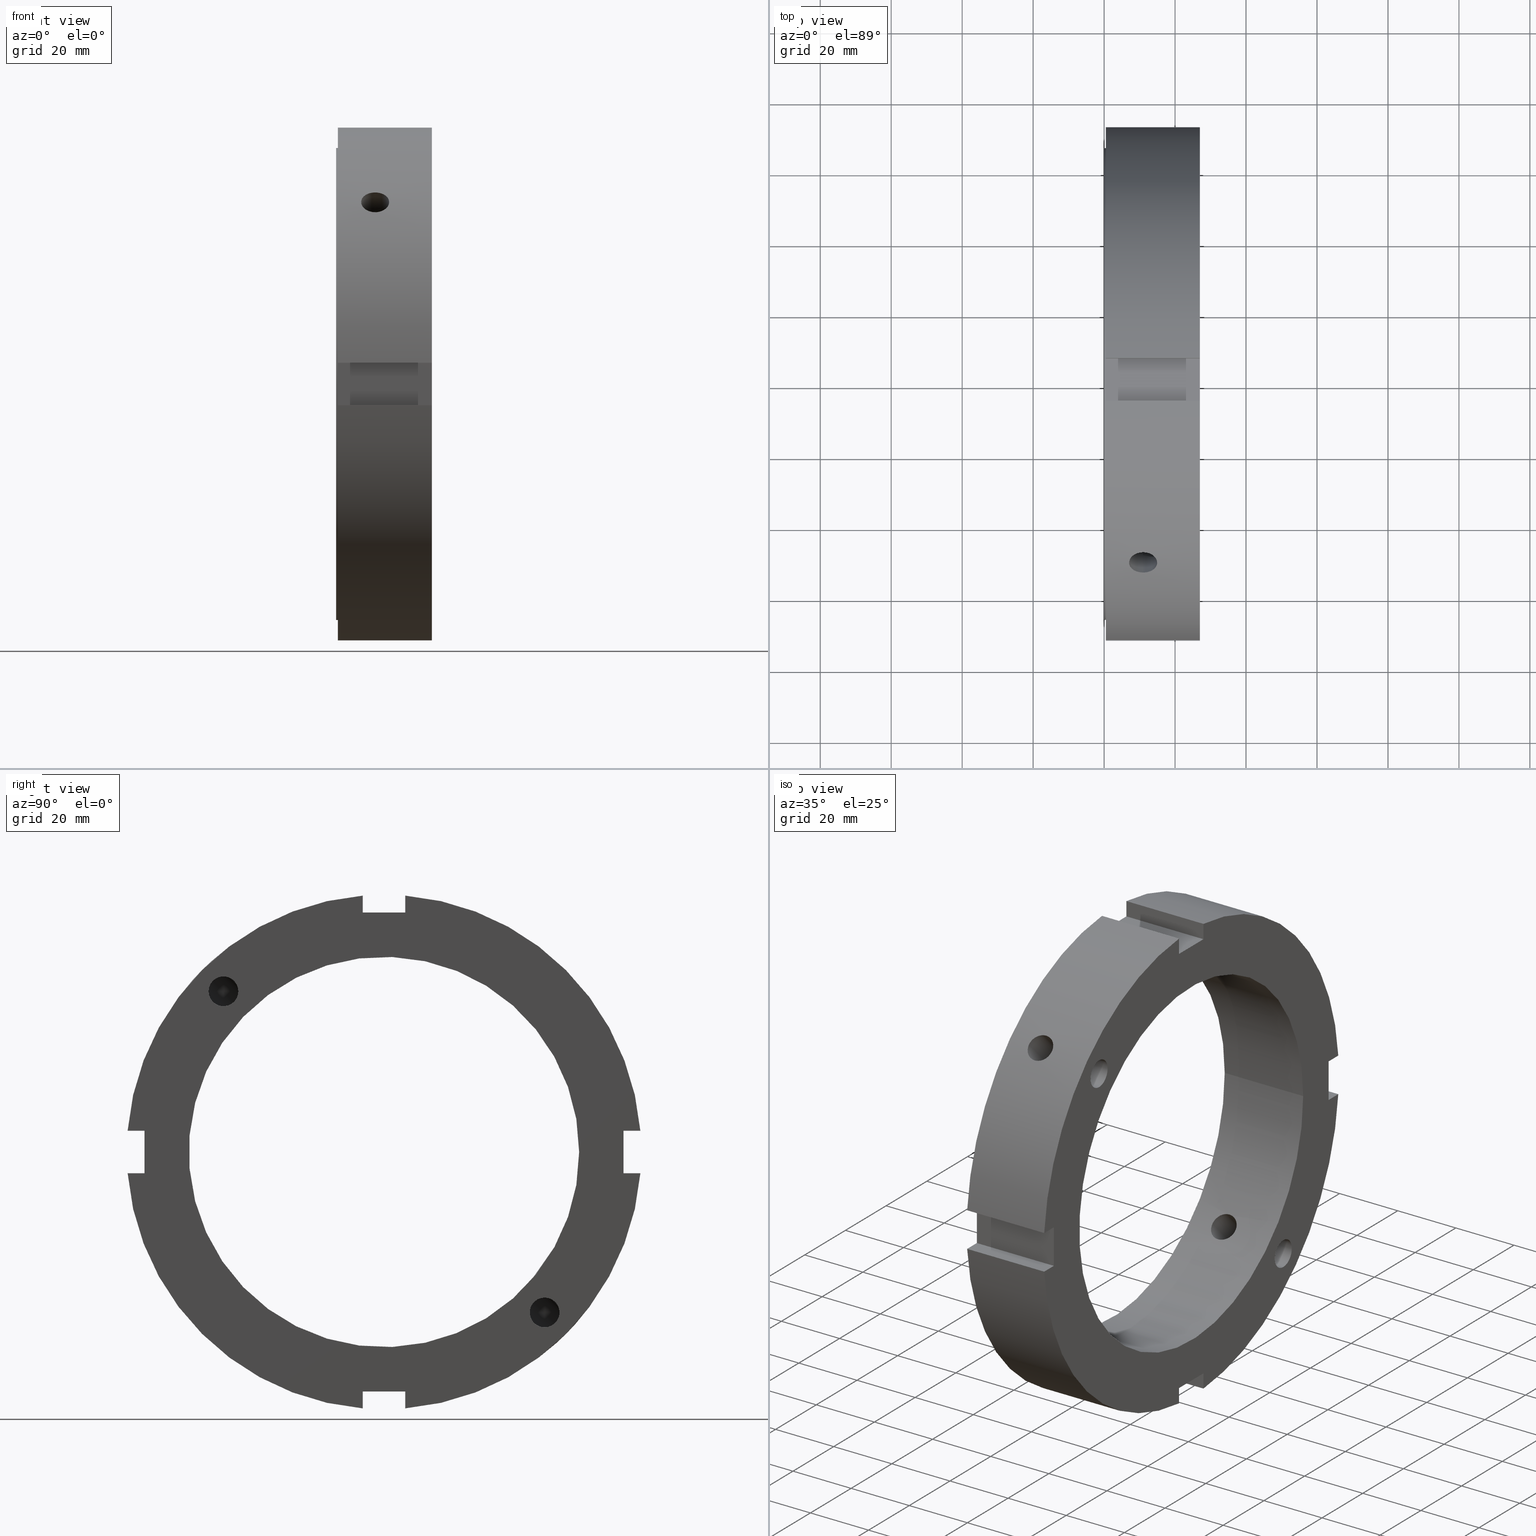
[diagram: canonical four-view strip — front | top / right | iso, engineering-drawing reading convention]
A machine part, canonical four-view strip (front | top / right | iso — engineering-drawing reading convention). The complete STEP part file that produces these views, byte-faithful:
ISO-10303-21;
HEADER;
/****************************************************************
 * Generated by software with PDElib inside                    *
 * PDElib Version v51a, created Wed 11/30/2011                  *
 * ITI Transcendata (http://www.transcendata.com/)              *
 ****************************************************************/
FILE_DESCRIPTION((''),'2;1');
FILE_NAME('C:\\Users\\sugidesign\\Documents\\Fukuda\\3Ddata\\ZMVtype\\FKD ZMV110.stp','2014-02-22T07:19:22',('sugidesign'),(''),'Autodesk Inventor LT ','Autodesk Inventor LT ','');
FILE_SCHEMA(('CONFIG_CONTROL_DESIGN'));
ENDSEC;
DATA;
#5=APPLICATION_CONTEXT('configuration controlled 3D designs of mechanical parts and assemblies');
#6=APPLICATION_PROTOCOL_DEFINITION('International Standard','ap203_configuration_controlled_3d_design_of_mechanical_parts_and_assemblies_mim_lf',2004,#5);
#7=PRODUCT_CONTEXT('',#5,'mechanical');
#8=PRODUCT('FKD ZMV110','FKD ZMV110',$,(#7));
#9=PRODUCT_RELATED_PRODUCT_CATEGORY('part',$,(#8));
#10=PRODUCT_DEFINITION_FORMATION('',$,#8);
#11=PRODUCT_DEFINITION_CONTEXT('part definition',#5,'design');
#12=PRODUCT_DEFINITION('',$,#10,#11);
#18=(NAMED_UNIT(*)PLANE_ANGLE_UNIT()SI_UNIT($,.RADIAN.));
#19=DIMENSIONAL_EXPONENTS(0.0,0.0,0.0,0.0,0.0,0.0,0.0);
#20=PLANE_ANGLE_MEASURE_WITH_UNIT(PLANE_ANGLE_MEASURE(0.0174532925),#18);
#24=(CONVERSION_BASED_UNIT('DEGREE',#20)NAMED_UNIT(#19)PLANE_ANGLE_UNIT());
#28=(NAMED_UNIT(*)SI_UNIT($,.STERADIAN.)SOLID_ANGLE_UNIT());
#32=(LENGTH_UNIT()NAMED_UNIT(*)SI_UNIT(.MILLI.,.METRE.));
#34=UNCERTAINTY_MEASURE_WITH_UNIT(LENGTH_MEASURE(0.01),#32,'DISTANCE_ACCURACY_VALUE','');
#36=(GEOMETRIC_REPRESENTATION_CONTEXT(3)GLOBAL_UNCERTAINTY_ASSIGNED_CONTEXT((#34))GLOBAL_UNIT_ASSIGNED_CONTEXT((#24,#28,#32))REPRESENTATION_CONTEXT('None','None'));
#37=AXIS2_PLACEMENT_3D('',#38,#39,#40);
#38=CARTESIAN_POINT('',(0.0,0.0,0.0));
#39=DIRECTION('',(0.0,0.0,1.0));
#40=DIRECTION('',(1.0,0.0,0.0));
#41=SHAPE_REPRESENTATION('',(#37),#36);
#42=PRODUCT_DEFINITION_SHAPE('','',#12);
#43=SHAPE_DEFINITION_REPRESENTATION(#42,#41);
#49=(NAMED_UNIT(*)PLANE_ANGLE_UNIT()SI_UNIT($,.RADIAN.));
#50=DIMENSIONAL_EXPONENTS(0.0,0.0,0.0,0.0,0.0,0.0,0.0);
#51=PLANE_ANGLE_MEASURE_WITH_UNIT(PLANE_ANGLE_MEASURE(0.0174532925),#49);
#55=(CONVERSION_BASED_UNIT('DEGREE',#51)NAMED_UNIT(#50)PLANE_ANGLE_UNIT());
#59=(NAMED_UNIT(*)SI_UNIT($,.STERADIAN.)SOLID_ANGLE_UNIT());
#63=(LENGTH_UNIT()NAMED_UNIT(*)SI_UNIT(.MILLI.,.METRE.));
#65=UNCERTAINTY_MEASURE_WITH_UNIT(LENGTH_MEASURE(0.000001),#63,'DISTANCE_ACCURACY_VALUE','');
#67=(GEOMETRIC_REPRESENTATION_CONTEXT(3)GLOBAL_UNCERTAINTY_ASSIGNED_CONTEXT((#65))GLOBAL_UNIT_ASSIGNED_CONTEXT((#55,#59,#63))REPRESENTATION_CONTEXT('','3D'));
#68=CARTESIAN_POINT('',(18.999999999999982,-45.254833995939023,45.254833995939059));
#69=DIRECTION('',(-1.0,0.0,0.0));
#70=DIRECTION('',(0.0,-1.0,0.0));
#71=AXIS2_PLACEMENT_3D('',#68,#69,#70);
#72=CYLINDRICAL_SURFACE('',#71,4.188);
#73=CARTESIAN_POINT('',(26.999999999999986,-49.442833995939026,45.254833995939059));
#74=VERTEX_POINT('',#73);
#75=CARTESIAN_POINT('',(26.999999999999986,-45.254833995939023,45.254833995939059));
#76=DIRECTION('',(-1.0,0.0,0.0));
#77=DIRECTION('',(0.0,-1.0,0.0));
#78=AXIS2_PLACEMENT_3D('',#75,#76,#77);
#79=CIRCLE('',#78,4.188);
#80=EDGE_CURVE('',#74,#74,#79,.T.);
#81=ORIENTED_EDGE('',*,*,#80,.F.);
#82=EDGE_LOOP('',(#81));
#83=FACE_OUTER_BOUND('',#82,.T.);
#84=CARTESIAN_POINT('',(10.999999999999982,-47.063821435647398,41.477677864273687));
#85=VERTEX_POINT('',#84);
#86=CARTESIAN_POINT('',(10.999999999999982,-41.477677864273602,47.063821435647327));
#87=VERTEX_POINT('',#86);
#88=CARTESIAN_POINT('',(10.999999999999982,-47.063821435647348,41.477677864273659));
#89=CARTESIAN_POINT('',(11.302186184549292,-47.063821435647348,41.477677864273659));
#90=CARTESIAN_POINT('',(11.563472613900224,-46.974593762090848,41.433776318337301));
#91=CARTESIAN_POINT('',(12.063727176337515,-46.721616309435639,41.329710319108194));
#92=CARTESIAN_POINT('',(12.301250833159227,-46.555267000230806,41.268943540159768));
#93=CARTESIAN_POINT('',(12.997553227607849,-45.98335194567052,41.111776960787758));
#94=CARTESIAN_POINT('',(13.431961554377928,-45.507129819828556,41.046442833199805));
#95=CARTESIAN_POINT('',(14.114248174209564,-44.592866071055674,41.097078075618526));
#96=CARTESIAN_POINT('',(14.41560135665021,-44.098859342373629,41.195916211820219));
#97=CARTESIAN_POINT('',(14.729475121457833,-43.379036482851234,41.50134692943864));
#98=CARTESIAN_POINT('',(14.811858442484647,-43.142203702858744,41.628690883558406));
#99=CARTESIAN_POINT('',(14.92214477757191,-42.694435201368997,41.929705631390192));
#100=CARTESIAN_POINT('',(14.949999999999983,-42.483518849160909,42.103422743498633));
#101=CARTESIAN_POINT('',(14.949999999999983,-42.103422743498598,42.483518849160944));
#102=CARTESIAN_POINT('',(14.922144777571907,-41.929705631390149,42.694435201369032));
#103=CARTESIAN_POINT('',(14.81185844248464,-41.62869088355837,43.142203702858779));
#104=CARTESIAN_POINT('',(14.729475121457828,-41.501346929438597,43.379036482851269));
#105=CARTESIAN_POINT('',(14.415601356650196,-41.195916211820176,44.09885934237365));
#106=CARTESIAN_POINT('',(14.11424817420956,-41.097078075618498,44.592866071055695));
#107=CARTESIAN_POINT('',(13.431961554377914,-41.046442833199769,45.507129819828577));
#108=CARTESIAN_POINT('',(12.997553227607824,-41.111776960787708,45.983351945670528));
#109=CARTESIAN_POINT('',(12.301250833159187,-41.268943540159711,46.555267000230806));
#110=CARTESIAN_POINT('',(12.063727176337478,-41.329710319108131,46.721616309435639));
#111=CARTESIAN_POINT('',(11.563472613900185,-41.433776318337237,46.974593762090826));
#112=CARTESIAN_POINT('',(11.302186184549294,-41.477677864273623,47.063821435647384));
#113=CARTESIAN_POINT('',(10.999999999999982,-41.477677864273623,47.063821435647384));
#114=B_SPLINE_CURVE_WITH_KNOTS('',3,(#88,#89,#90,#91,#92,#93,#94,#95,#96,#97,#98,#99,#100,#101,#102,#103,#104,#105,#106,#107,#108,#109,#110,#111,#112,#113),.UNSPECIFIED.,.F.,.U.,(4,2,2,2,2,2,2,2,2,2,2,2,4),(0.0,0.090655855364793,0.181311710729586,0.362623421459172,0.523884541749021,0.604515101893945,0.68514566203887,0.765776222183794,0.846406782328718,1.007667902618566,1.188979613348152,1.279635468712946,1.370291324077739),.UNSPECIFIED.);
#115=EDGE_CURVE('',#85,#87,#114,.T.);
#116=ORIENTED_EDGE('',*,*,#115,.F.);
#117=CARTESIAN_POINT('',(10.999999999999982,-49.031990127604395,43.445846556230677));
#118=VERTEX_POINT('',#117);
#119=CARTESIAN_POINT('',(10.999999999999982,-45.254833995939023,45.254833995939059));
#120=DIRECTION('',(-1.0,0.0,0.0));
#121=DIRECTION('',(0.0,-1.0,0.0));
#122=AXIS2_PLACEMENT_3D('',#119,#120,#121);
#123=CIRCLE('',#122,4.188);
#124=EDGE_CURVE('',#85,#118,#123,.T.);
#125=ORIENTED_EDGE('',*,*,#124,.T.);
#126=CARTESIAN_POINT('',(10.999999999999982,-43.445846556230741,49.031990127604473));
#127=VERTEX_POINT('',#126);
#128=CARTESIAN_POINT('',(10.999999999999982,-43.445846556230691,49.031990127604452));
#129=CARTESIAN_POINT('',(11.302186184549294,-43.445846556230691,49.031990127604452));
#130=CARTESIAN_POINT('',(11.563472613900185,-43.535074229787263,49.075891673540831));
#131=CARTESIAN_POINT('',(12.063727176337487,-43.78805168244245,49.179957672769945));
#132=CARTESIAN_POINT('',(12.301250833159179,-43.954400991647297,49.240724451718371));
#133=CARTESIAN_POINT('',(12.997553227607813,-44.526316046207562,49.397891031090367));
#134=CARTESIAN_POINT('',(13.431961554377914,-45.002538172049491,49.463225158678298));
#135=CARTESIAN_POINT('',(14.114248174209559,-45.916801920822373,49.412589916259584));
#136=CARTESIAN_POINT('',(14.415601356650193,-46.410808649504432,49.313751780057899));
#137=CARTESIAN_POINT('',(14.729475121457822,-47.130631509026834,49.008321062439471));
#138=CARTESIAN_POINT('',(14.811858442484638,-47.367464289019296,48.880977108319712));
#139=CARTESIAN_POINT('',(14.922144777571905,-47.815232790509043,48.57996236048794));
#140=CARTESIAN_POINT('',(14.949999999999983,-48.026149142717117,48.406245248379463));
#141=CARTESIAN_POINT('',(14.949999999999983,-48.406245248379427,48.026149142717152));
#142=CARTESIAN_POINT('',(14.922144777571912,-48.579962360487905,47.815232790509086));
#143=CARTESIAN_POINT('',(14.811858442484647,-48.880977108319684,47.367464289019324));
#144=CARTESIAN_POINT('',(14.729475121457831,-49.008321062439457,47.130631509026848));
#145=CARTESIAN_POINT('',(14.415601356650205,-49.313751780057878,46.41080864950446));
#146=CARTESIAN_POINT('',(14.114248174209564,-49.412589916259549,45.916801920822394));
#147=CARTESIAN_POINT('',(13.431961554377922,-49.463225158678263,45.002538172049505));
#148=CARTESIAN_POINT('',(12.997553227607849,-49.397891031090325,44.526316046207562));
#149=CARTESIAN_POINT('',(12.301250833159223,-49.240724451718314,43.954400991647276));
#150=CARTESIAN_POINT('',(12.063727176337508,-49.179957672769888,43.788051682442443));
#151=CARTESIAN_POINT('',(11.563472613900213,-49.075891673540781,43.535074229787227));
#152=CARTESIAN_POINT('',(11.302186184549294,-49.031990127604423,43.445846556230734));
#153=CARTESIAN_POINT('',(10.999999999999982,-49.031990127604423,43.445846556230734));
#154=B_SPLINE_CURVE_WITH_KNOTS('',3,(#128,#129,#130,#131,#132,#133,#134,#135,#136,#137,#138,#139,#140,#141,#142,#143,#144,#145,#146,#147,#148,#149,#150,#151,#152,#153),.UNSPECIFIED.,.F.,.U.,(4,2,2,2,2,2,2,2,2,2,2,2,4),(-1.37029132407774,-1.279635468712946,-1.188979613348153,-1.007667902618566,-0.846406782328718,-0.765776222183794,-0.68514566203887,-0.604515101893946,-0.523884541749021,-0.362623421459173,-0.181311710729586,-0.090655855364793,0.0),.UNSPECIFIED.);
#155=EDGE_CURVE('',#127,#118,#154,.T.);
#156=ORIENTED_EDGE('',*,*,#155,.F.);
#157=CARTESIAN_POINT('',(10.999999999999982,-45.254833995939023,45.254833995939059));
#158=DIRECTION('',(-1.0,0.0,0.0));
#159=DIRECTION('',(0.0,-1.0,0.0));
#160=AXIS2_PLACEMENT_3D('',#157,#158,#159);
#161=CIRCLE('',#160,4.188);
#162=EDGE_CURVE('',#127,#87,#161,.T.);
#163=ORIENTED_EDGE('',*,*,#162,.T.);
#164=EDGE_LOOP('',(#116,#125,#156,#163));
#165=FACE_BOUND('',#164,.T.);
#166=ADVANCED_FACE('',(#83,#165),#72,.F.);
#167=CARTESIAN_POINT('',(9.741797863756272,-45.254833995939023,45.254833995939059));
#168=DIRECTION('',(1.0,0.0,0.0));
#169=DIRECTION('',(0.0,-1.0,0.0));
#170=AXIS2_PLACEMENT_3D('',#167,#168,#169);
#171=CONICAL_SURFACE('',#170,2.094,59.000000000000007);
#172=CARTESIAN_POINT('',(10.999999999999975,-49.031990127604388,43.445846556230691));
#173=CARTESIAN_POINT('',(10.906150737993398,-48.699635695353635,43.113492123979931));
#174=CARTESIAN_POINT('',(10.855404421538761,-48.36700041912583,42.784600913771634));
#175=CARTESIAN_POINT('',(10.855404421538763,-48.046033748616132,42.463634243261936));
#176=CARTESIAN_POINT('',(10.855404421538765,-47.729817427342446,42.147417921988236));
#177=CARTESIAN_POINT('',(10.905603352153006,-47.398114360607764,41.811970789234074));
#178=CARTESIAN_POINT('',(10.999999999999968,-47.063821435647384,41.477677864273694));
#179=B_SPLINE_CURVE_WITH_KNOTS('',3,(#172,#173,#174,#175,#176,#177,#178),.UNSPECIFIED.,.F.,.U.,(4,3,4),(-0.136174625551366,0.0,0.134159223056693),.UNSPECIFIED.);
#180=EDGE_CURVE('',#118,#85,#179,.T.);
#181=ORIENTED_EDGE('',*,*,#180,.F.);
#182=ORIENTED_EDGE('',*,*,#124,.F.);
#183=EDGE_LOOP('',(#181,#182));
#184=FACE_OUTER_BOUND('',#183,.T.);
#185=ADVANCED_FACE('',(#184),#171,.F.);
#186=CARTESIAN_POINT('',(9.741797863756272,-45.254833995939023,45.254833995939059));
#187=DIRECTION('',(1.0,0.0,0.0));
#188=DIRECTION('',(0.0,-1.0,0.0));
#189=AXIS2_PLACEMENT_3D('',#186,#187,#188);
#190=CONICAL_SURFACE('',#189,2.094,59.000000000000007);
#191=CARTESIAN_POINT('',(10.999999999999996,-41.477677864273581,47.063821435647355));
#192=CARTESIAN_POINT('',(10.905603352153019,-41.811970789233996,47.398114360607771));
#193=CARTESIAN_POINT('',(10.855404421538747,-42.147417921988215,47.729817427342468));
#194=CARTESIAN_POINT('',(10.855404421538754,-42.784600913771641,48.367000419125915));
#195=CARTESIAN_POINT('',(10.906150737993414,-43.11349212397996,48.69963569535372));
#196=CARTESIAN_POINT('',(10.999999999999996,-43.445846556230727,49.031990127604487));
#197=B_SPLINE_CURVE_WITH_KNOTS('',3,(#191,#192,#193,#194,#195,#196),.UNSPECIFIED.,.F.,.U.,(4,2,4),(2.351291613661319,2.485450836718028,2.6216254622694),.UNSPECIFIED.);
#198=EDGE_CURVE('',#87,#127,#197,.T.);
#199=ORIENTED_EDGE('',*,*,#198,.F.);
#200=ORIENTED_EDGE('',*,*,#162,.F.);
#201=EDGE_LOOP('',(#199,#200));
#202=FACE_OUTER_BOUND('',#201,.T.);
#203=ADVANCED_FACE('',(#202),#190,.F.);
#204=CARTESIAN_POINT('',(10.999999999999982,-145.75836168124283,145.75836168124289));
#205=DIRECTION('',(0.0,-0.707106781186547,0.707106781186548));
#206=DIRECTION('',(1.0,0.0,0.0));
#207=AXIS2_PLACEMENT_3D('',#204,#205,#206);
#208=CYLINDRICAL_SURFACE('',#207,3.95);
#209=CARTESIAN_POINT('',(10.999999999999982,-53.982169746092445,48.396026174718742));
#210=VERTEX_POINT('',#209);
#211=CARTESIAN_POINT('',(10.999999999999982,-53.982169746092438,48.396026174718749));
#212=CARTESIAN_POINT('',(10.503923751563612,-53.982169746092438,48.396026174718749));
#213=CARTESIAN_POINT('',(9.974848764904804,-53.916028923099752,48.470120273871906));
#214=CARTESIAN_POINT('',(9.0016794625268,-53.645330991550473,48.769551945398121));
#215=CARTESIAN_POINT('',(8.557576817486401,-53.440570702666683,48.99467869243189));
#216=CARTESIAN_POINT('',(7.856279715613002,-52.96379725963034,49.509689122117848));
#217=CARTESIAN_POINT('',(7.552303598608995,-52.659945865430032,49.833893778569831));
#218=CARTESIAN_POINT('',(7.149161023486935,-51.986162927236272,50.536380279805897));
#219=CARTESIAN_POINT('',(7.049999999999983,-51.616020410767632,50.914462861281756));
#220=CARTESIAN_POINT('',(7.049999999999983,-50.914462861281713,51.616020410767682));
#221=CARTESIAN_POINT('',(7.149161023486936,-50.536380279805854,51.986162927236307));
#222=CARTESIAN_POINT('',(7.552303598608992,-49.833893778569795,52.659945865430061));
#223=CARTESIAN_POINT('',(7.856279715613002,-49.509689122117813,52.963797259630368));
#224=CARTESIAN_POINT('',(8.557576817486403,-48.994678692431847,53.440570702666719));
#225=CARTESIAN_POINT('',(9.001679462526807,-48.769551945398078,53.64533099155053));
#226=CARTESIAN_POINT('',(9.974848764904817,-48.470120273871864,53.916028923099795));
#227=CARTESIAN_POINT('',(10.503923751563612,-48.396026174718699,53.982169746092474));
#228=CARTESIAN_POINT('',(11.496076248436356,-48.396026174718699,53.982169746092474));
#229=CARTESIAN_POINT('',(12.025151235095155,-48.470120273871864,53.916028923099795));
#230=CARTESIAN_POINT('',(12.998320537473163,-48.769551945398078,53.645330991550523));
#231=CARTESIAN_POINT('',(13.442423182513563,-48.994678692431847,53.440570702666719));
#232=CARTESIAN_POINT('',(14.143720284386966,-49.509689122117813,52.963797259630368));
#233=CARTESIAN_POINT('',(14.44769640139098,-49.833893778569795,52.659945865430053));
#234=CARTESIAN_POINT('',(14.850838976513032,-50.536380279805854,51.986162927236293));
#235=CARTESIAN_POINT('',(14.949999999999983,-50.914462861281713,51.616020410767689));
#236=CARTESIAN_POINT('',(14.949999999999983,-51.616020410767632,50.914462861281763));
#237=CARTESIAN_POINT('',(14.850838976513037,-51.986162927236251,50.536380279805897));
#238=CARTESIAN_POINT('',(14.447696401390983,-52.659945865430018,49.833893778569838));
#239=CARTESIAN_POINT('',(14.143720284386969,-52.96379725963034,49.509689122117855));
#240=CARTESIAN_POINT('',(13.442423182513568,-53.440570702666683,48.99467869243189));
#241=CARTESIAN_POINT('',(12.998320537473164,-53.645330991550473,48.769551945398121));
#242=CARTESIAN_POINT('',(12.025151235095159,-53.916028923099752,48.470120273871906));
#243=CARTESIAN_POINT('',(11.496076248436353,-53.982169746092438,48.396026174718749));
#244=CARTESIAN_POINT('',(10.99999999999998,-53.982169746092438,48.396026174718749));
#245=B_SPLINE_CURVE_WITH_KNOTS('',3,(#211,#212,#213,#214,#215,#216,#217,#218,#219,#220,#221,#222,#223,#224,#225,#226,#227,#228,#229,#230,#231,#232,#233,#234,#235,#236,#237,#238,#239,#240,#241,#242,#243,#244),.UNSPECIFIED.,.T.,.U.,(4,2,2,2,2,2,2,2,2,2,2,2,2,2,2,2,4),(0.0,0.148822874530912,0.297645749061824,0.446468579252058,0.595291409442292,0.744114239632526,0.89293706982276,1.041759944353672,1.190582818884583,1.339405693415495,1.488228567946407,1.637051398136641,1.785874228326875,1.934697058517108,2.083519888707342,2.232342763238254,2.381165637769167),.UNSPECIFIED.);
#246=EDGE_CURVE('',#210,#210,#245,.T.);
#247=ORIENTED_EDGE('',*,*,#246,.F.);
#248=EDGE_LOOP('',(#247));
#249=FACE_OUTER_BOUND('',#248,.T.);
#250=ORIENTED_EDGE('',*,*,#180,.T.);
#251=ORIENTED_EDGE('',*,*,#115,.T.);
#252=ORIENTED_EDGE('',*,*,#198,.T.);
#253=ORIENTED_EDGE('',*,*,#155,.T.);
#254=EDGE_LOOP('',(#250,#251,#252,#253));
#255=FACE_BOUND('',#254,.T.);
#256=CARTESIAN_POINT('',(10.999999999999982,-41.583518418846417,35.997374847472706));
#257=VERTEX_POINT('',#256);
#258=CARTESIAN_POINT('',(10.999999999999982,-41.58351841884641,35.99737484747272));
#259=CARTESIAN_POINT('',(11.496154302362157,-41.58351841884641,35.99737484747272));
#260=CARTESIAN_POINT('',(12.025262772500426,-41.518628991801961,36.072763435563793));
#261=CARTESIAN_POINT('',(12.998410494294017,-41.252505012154813,36.376800922678065));
#262=CARTESIAN_POINT('',(13.442464272913387,-41.051002943928125,36.605169044294044));
#263=CARTESIAN_POINT('',(14.143678982418283,-40.580381782107125,37.126215234790372));
#264=CARTESIAN_POINT('',(14.447643352109832,-40.27980614085638,37.453626668541943));
#265=CARTESIAN_POINT('',(14.850808582568824,-39.610608602503994,38.160668488748691));
#266=CARTESIAN_POINT('',(14.949999999999983,-39.241706720729027,38.540039209791203));
#267=CARTESIAN_POINT('',(14.949999999999983,-38.540039209791161,39.241706720729063));
#268=CARTESIAN_POINT('',(14.850808582568822,-38.160668488748655,39.610608602504037));
#269=CARTESIAN_POINT('',(14.447643352109829,-37.453626668541908,40.279806140856415));
#270=CARTESIAN_POINT('',(14.14367898241828,-37.126215234790337,40.58038178210716));
#271=CARTESIAN_POINT('',(13.442464272913387,-36.605169044294001,41.051002943928161));
#272=CARTESIAN_POINT('',(12.998410494294017,-36.376800922678029,41.252505012154856));
#273=CARTESIAN_POINT('',(12.025262772500424,-36.072763435563765,41.518628991802011));
#274=CARTESIAN_POINT('',(11.496154302362157,-35.99737484747267,41.583518418846438));
#275=CARTESIAN_POINT('',(10.503845697637807,-35.99737484747267,41.583518418846438));
#276=CARTESIAN_POINT('',(9.974737227499546,-36.072763435563765,41.518628991802011));
#277=CARTESIAN_POINT('',(9.001589505705955,-36.376800922678029,41.252505012154856));
#278=CARTESIAN_POINT('',(8.557535727086577,-36.605169044294009,41.051002943928161));
#279=CARTESIAN_POINT('',(7.856321017581686,-37.126215234790337,40.58038178210716));
#280=CARTESIAN_POINT('',(7.552356647890134,-37.453626668541908,40.279806140856415));
#281=CARTESIAN_POINT('',(7.149191417431143,-38.160668488748655,39.61060860250403));
#282=CARTESIAN_POINT('',(7.049999999999983,-38.540039209791168,39.24170672072907));
#283=CARTESIAN_POINT('',(7.049999999999983,-39.241706720729027,38.540039209791203));
#284=CARTESIAN_POINT('',(7.149191417431142,-39.610608602503994,38.160668488748691));
#285=CARTESIAN_POINT('',(7.552356647890132,-40.27980614085638,37.453626668541943));
#286=CARTESIAN_POINT('',(7.856321017581682,-40.580381782107125,37.126215234790372));
#287=CARTESIAN_POINT('',(8.557535727086577,-41.051002943928125,36.605169044294044));
#288=CARTESIAN_POINT('',(9.001589505705951,-41.252505012154813,36.376800922678065));
#289=CARTESIAN_POINT('',(9.974737227499542,-41.518628991801961,36.072763435563793));
#290=CARTESIAN_POINT('',(10.503845697637807,-41.58351841884641,35.99737484747272));
#291=CARTESIAN_POINT('',(10.999999999999982,-41.58351841884641,35.99737484747272));
#292=B_SPLINE_CURVE_WITH_KNOTS('',3,(#258,#259,#260,#261,#262,#263,#264,#265,#266,#267,#268,#269,#270,#271,#272,#273,#274,#275,#276,#277,#278,#279,#280,#281,#282,#283,#284,#285,#286,#287,#288,#289,#290,#291),.UNSPECIFIED.,.T.,.U.,(4,2,2,2,2,2,2,2,2,2,2,2,2,2,2,2,4),(0.0,0.148846290708652,0.297692581417305,0.446538737954039,0.595384894490773,0.744231051027507,0.89307720756424,1.041923498272893,1.190769788981545,1.339616079690198,1.488462370398851,1.637308526935584,1.786154683472318,1.935000840009052,2.083846996545786,2.232693287254438,2.381539577963091),.UNSPECIFIED.);
#293=EDGE_CURVE('',#257,#257,#292,.T.);
#294=ORIENTED_EDGE('',*,*,#293,.F.);
#295=EDGE_LOOP('',(#294));
#296=FACE_BOUND('',#295,.T.);
#297=ADVANCED_FACE('',(#249,#255,#296),#208,.F.);
#298=CARTESIAN_POINT('',(9.741797863756272,45.254833995939052,-45.25483399593903));
#299=DIRECTION('',(1.0,0.0,0.0));
#300=DIRECTION('',(0.0,0.0,-1.0));
#301=AXIS2_PLACEMENT_3D('',#298,#299,#300);
#302=CONICAL_SURFACE('',#301,2.094,59.000000000000007);
#303=CARTESIAN_POINT('',(10.999999999999982,41.477677864273673,-47.063821435647412));
#304=VERTEX_POINT('',#303);
#305=CARTESIAN_POINT('',(10.999999999999982,43.44584655623067,-49.031990127604402));
#306=VERTEX_POINT('',#305);
#307=CARTESIAN_POINT('',(10.999999999999979,41.477677864273687,-47.063821435647398));
#308=CARTESIAN_POINT('',(10.905603353268861,41.811970785282462,-47.39811435665618));
#309=CARTESIAN_POINT('',(10.855404421538765,42.14741792452002,-47.729817429874231));
#310=CARTESIAN_POINT('',(10.855404421538763,42.463634243261922,-48.046033748616139));
#311=CARTESIAN_POINT('',(10.855404421538761,42.784600913771627,-48.367000419125844));
#312=CARTESIAN_POINT('',(10.906150737993405,43.113492123979917,-48.699635695353649));
#313=CARTESIAN_POINT('',(10.99999999999998,43.44584655623067,-49.031990127604402));
#314=B_SPLINE_CURVE_WITH_KNOTS('',3,(#307,#308,#309,#310,#311,#312,#313),.UNSPECIFIED.,.F.,.U.,(4,3,4),(-0.134159221982549,0.0,0.136174625551366),.UNSPECIFIED.);
#315=EDGE_CURVE('',#304,#306,#314,.T.);
#316=ORIENTED_EDGE('',*,*,#315,.F.);
#317=CARTESIAN_POINT('',(10.999999999999982,45.254833995939052,-45.25483399593903));
#318=DIRECTION('',(1.0,0.0,0.0));
#319=DIRECTION('',(0.0,0.0,-1.0));
#320=AXIS2_PLACEMENT_3D('',#317,#318,#319);
#321=CIRCLE('',#320,4.188);
#322=EDGE_CURVE('',#304,#306,#321,.T.);
#323=ORIENTED_EDGE('',*,*,#322,.T.);
#324=EDGE_LOOP('',(#316,#323));
#325=FACE_OUTER_BOUND('',#324,.T.);
#326=ADVANCED_FACE('',(#325),#302,.F.);
#327=CARTESIAN_POINT('',(9.741797863756272,45.254833995939052,-45.25483399593903));
#328=DIRECTION('',(1.0,0.0,0.0));
#329=DIRECTION('',(0.0,0.0,-1.0));
#330=AXIS2_PLACEMENT_3D('',#327,#328,#329);
#331=CONICAL_SURFACE('',#330,2.094,59.000000000000007);
#332=CARTESIAN_POINT('',(10.999999999999982,49.031990127604466,-43.445846556230748));
#333=VERTEX_POINT('',#332);
#334=CARTESIAN_POINT('',(10.999999999999982,47.06382143564732,-41.477677864273616));
#335=VERTEX_POINT('',#334);
#336=CARTESIAN_POINT('',(10.999999999999982,49.031990127604473,-43.445846556230748));
#337=CARTESIAN_POINT('',(10.906150737993398,48.699635695353713,-43.113492123979988));
#338=CARTESIAN_POINT('',(10.855404421538758,48.367000419125915,-42.784600913771662));
#339=CARTESIAN_POINT('',(10.855404421538751,47.729817427342482,-42.147417921988222));
#340=CARTESIAN_POINT('',(10.90560335215301,47.398114360607757,-41.811970789234024));
#341=CARTESIAN_POINT('',(10.999999999999988,47.063821435647341,-41.477677864273602));
#342=B_SPLINE_CURVE_WITH_KNOTS('',3,(#336,#337,#338,#339,#340,#341),.UNSPECIFIED.,.F.,.U.,(4,2,4),(2.37861077122344,2.514785396774812,2.64894461983152),.UNSPECIFIED.);
#343=EDGE_CURVE('',#333,#335,#342,.T.);
#344=ORIENTED_EDGE('',*,*,#343,.F.);
#345=CARTESIAN_POINT('',(10.999999999999982,45.254833995939052,-45.25483399593903));
#346=DIRECTION('',(1.0,0.0,0.0));
#347=DIRECTION('',(0.0,0.0,-1.0));
#348=AXIS2_PLACEMENT_3D('',#345,#346,#347);
#349=CIRCLE('',#348,4.188);
#350=EDGE_CURVE('',#333,#335,#349,.T.);
#351=ORIENTED_EDGE('',*,*,#350,.T.);
#352=EDGE_LOOP('',(#344,#351));
#353=FACE_OUTER_BOUND('',#352,.T.);
#354=ADVANCED_FACE('',(#353),#331,.F.);
#355=CARTESIAN_POINT('',(18.999999999999982,45.254833995939052,-45.25483399593903));
#356=DIRECTION('',(1.0,0.0,0.0));
#357=DIRECTION('',(0.0,0.0,-1.0));
#358=AXIS2_PLACEMENT_3D('',#355,#356,#357);
#359=CYLINDRICAL_SURFACE('',#358,4.188);
#360=CARTESIAN_POINT('',(10.999999999999982,43.445846556230677,-49.031990127604402));
#361=CARTESIAN_POINT('',(11.302186184549294,43.445846556230677,-49.031990127604402));
#362=CARTESIAN_POINT('',(11.563472613900212,43.535074229787227,-49.075891673540788));
#363=CARTESIAN_POINT('',(12.063727176337501,43.788051682442429,-49.179957672769902));
#364=CARTESIAN_POINT('',(12.301250833159205,43.954400991647269,-49.240724451718322));
#365=CARTESIAN_POINT('',(12.997553227607831,44.526316046207555,-49.397891031090339));
#366=CARTESIAN_POINT('',(13.431961554377922,45.002538172049498,-49.46322515867827));
#367=CARTESIAN_POINT('',(14.114248174209564,45.91680192082238,-49.412589916259563));
#368=CARTESIAN_POINT('',(14.415601356650205,46.410808649504453,-49.313751780057885));
#369=CARTESIAN_POINT('',(14.729475121457831,47.130631509026841,-49.008321062439464));
#370=CARTESIAN_POINT('',(14.811858442484647,47.367464289019317,-48.880977108319698));
#371=CARTESIAN_POINT('',(14.922144777571912,47.815232790509079,-48.579962360487912));
#372=CARTESIAN_POINT('',(14.949999999999983,48.026149142717145,-48.406245248379435));
#373=CARTESIAN_POINT('',(14.949999999999983,48.406245248379456,-48.026149142717131));
#374=CARTESIAN_POINT('',(14.922144777571905,48.579962360487926,-47.81523279050905));
#375=CARTESIAN_POINT('',(14.811858442484638,48.880977108319705,-47.367464289019303));
#376=CARTESIAN_POINT('',(14.729475121457822,49.008321062439464,-47.130631509026841));
#377=CARTESIAN_POINT('',(14.415601356650193,49.313751780057885,-46.410808649504446));
#378=CARTESIAN_POINT('',(14.11424817420956,49.412589916259577,-45.91680192082238));
#379=CARTESIAN_POINT('',(13.431961554377917,49.463225158678284,-45.002538172049498));
#380=CARTESIAN_POINT('',(12.997553227607813,49.39789103109036,-44.526316046207583));
#381=CARTESIAN_POINT('',(12.301250833159177,49.240724451718364,-43.954400991647304));
#382=CARTESIAN_POINT('',(12.063727176337478,49.179957672769945,-43.78805168244245));
#383=CARTESIAN_POINT('',(11.563472613900178,49.075891673540831,-43.535074229787263));
#384=CARTESIAN_POINT('',(11.302186184549294,49.031990127604459,-43.445846556230734));
#385=CARTESIAN_POINT('',(10.999999999999982,49.031990127604459,-43.445846556230734));
#386=B_SPLINE_CURVE_WITH_KNOTS('',3,(#360,#361,#362,#363,#364,#365,#366,#367,#368,#369,#370,#371,#372,#373,#374,#375,#376,#377,#378,#379,#380,#381,#382,#383,#384,#385),.UNSPECIFIED.,.F.,.U.,(4,2,2,2,2,2,2,2,2,2,2,2,4),(0.0,0.090655855364793,0.181311710729586,0.362623421459173,0.523884541749021,0.604515101893946,0.68514566203887,0.765776222183794,0.846406782328718,1.007667902618566,1.188979613348153,1.279635468712947,1.37029132407774),.UNSPECIFIED.);
#387=EDGE_CURVE('',#306,#333,#386,.T.);
#388=ORIENTED_EDGE('',*,*,#387,.F.);
#389=ORIENTED_EDGE('',*,*,#322,.F.);
#390=CARTESIAN_POINT('',(10.999999999999982,47.063821435647348,-41.477677864273623));
#391=CARTESIAN_POINT('',(11.302186184549294,47.063821435647348,-41.477677864273623));
#392=CARTESIAN_POINT('',(11.563472613900188,46.974593762090819,-41.433776318337252));
#393=CARTESIAN_POINT('',(12.063727176337487,46.721616309435618,-41.329710319108138));
#394=CARTESIAN_POINT('',(12.301250833159203,46.555267000230799,-41.268943540159725));
#395=CARTESIAN_POINT('',(12.997553227607835,45.98335194567052,-41.111776960787722));
#396=CARTESIAN_POINT('',(13.431961554377917,45.507129819828563,-41.046442833199777));
#397=CARTESIAN_POINT('',(14.11424817420956,44.592866071055688,-41.097078075618505));
#398=CARTESIAN_POINT('',(14.415601356650196,44.098859342373643,-41.195916211820183));
#399=CARTESIAN_POINT('',(14.729475121457828,43.379036482851262,-41.501346929438611));
#400=CARTESIAN_POINT('',(14.81185844248464,43.142203702858772,-41.628690883558377));
#401=CARTESIAN_POINT('',(14.922144777571907,42.694435201369025,-41.929705631390163));
#402=CARTESIAN_POINT('',(14.949999999999983,42.483518849160937,-42.103422743498612));
#403=CARTESIAN_POINT('',(14.949999999999983,42.103422743498626,-42.483518849160916));
#404=CARTESIAN_POINT('',(14.92214477757191,41.929705631390178,-42.694435201369004));
#405=CARTESIAN_POINT('',(14.811858442484647,41.628690883558399,-43.142203702858751));
#406=CARTESIAN_POINT('',(14.729475121457833,41.501346929438625,-43.379036482851241));
#407=CARTESIAN_POINT('',(14.41560135665021,41.195916211820212,-44.098859342373643));
#408=CARTESIAN_POINT('',(14.114248174209562,41.097078075618512,-44.592866071055681));
#409=CARTESIAN_POINT('',(13.431961554377922,41.046442833199791,-45.507129819828563));
#410=CARTESIAN_POINT('',(12.997553227607849,41.111776960787751,-45.983351945670528));
#411=CARTESIAN_POINT('',(12.301250833159227,41.268943540159754,-46.555267000230813));
#412=CARTESIAN_POINT('',(12.063727176337524,41.329710319108173,-46.721616309435646));
#413=CARTESIAN_POINT('',(11.563472613900231,41.433776318337287,-46.974593762090855));
#414=CARTESIAN_POINT('',(11.302186184549292,41.477677864273673,-47.063821435647398));
#415=CARTESIAN_POINT('',(10.999999999999982,41.477677864273673,-47.063821435647398));
#416=B_SPLINE_CURVE_WITH_KNOTS('',3,(#390,#391,#392,#393,#394,#395,#396,#397,#398,#399,#400,#401,#402,#403,#404,#405,#406,#407,#408,#409,#410,#411,#412,#413,#414,#415),.UNSPECIFIED.,.F.,.U.,(4,2,2,2,2,2,2,2,2,2,2,2,4),(-1.370291324077739,-1.279635468712945,-1.188979613348152,-1.007667902618566,-0.846406782328717,-0.765776222183793,-0.685145662038869,-0.604515101893945,-0.523884541749021,-0.362623421459172,-0.181311710729586,-0.090655855364793,0.0),.UNSPECIFIED.);
#417=EDGE_CURVE('',#335,#304,#416,.T.);
#418=ORIENTED_EDGE('',*,*,#417,.F.);
#419=ORIENTED_EDGE('',*,*,#350,.F.);
#420=EDGE_LOOP('',(#388,#389,#418,#419));
#421=FACE_OUTER_BOUND('',#420,.T.);
#422=CARTESIAN_POINT('',(26.999999999999986,45.254833995939052,-49.442833995939033));
#423=VERTEX_POINT('',#422);
#424=CARTESIAN_POINT('',(26.999999999999986,45.254833995939052,-45.25483399593903));
#425=DIRECTION('',(-1.0,0.0,0.0));
#426=DIRECTION('',(0.0,0.0,-1.0));
#427=AXIS2_PLACEMENT_3D('',#424,#425,#426);
#428=CIRCLE('',#427,4.188);
#429=EDGE_CURVE('',#423,#423,#428,.T.);
#430=ORIENTED_EDGE('',*,*,#429,.F.);
#431=EDGE_LOOP('',(#430));
#432=FACE_BOUND('',#431,.T.);
#433=ADVANCED_FACE('',(#421,#432),#359,.F.);
#434=CARTESIAN_POINT('',(10.999999999999982,145.75836168124286,-145.75836168124286));
#435=DIRECTION('',(0.0,-0.707106781186547,0.707106781186548));
#436=DIRECTION('',(1.0,0.0,0.0));
#437=AXIS2_PLACEMENT_3D('',#434,#435,#436);
#438=CYLINDRICAL_SURFACE('',#437,3.95);
#439=CARTESIAN_POINT('',(10.999999999999982,48.396026174718727,-53.982169746092453));
#440=VERTEX_POINT('',#439);
#441=CARTESIAN_POINT('',(10.999999999999982,48.396026174718727,-53.982169746092453));
#442=CARTESIAN_POINT('',(11.496076248436356,48.396026174718727,-53.982169746092453));
#443=CARTESIAN_POINT('',(12.025151235095155,48.470120273871878,-53.916028923099773));
#444=CARTESIAN_POINT('',(12.998320537473163,48.769551945398099,-53.645330991550502));
#445=CARTESIAN_POINT('',(13.442423182513563,48.994678692431862,-53.440570702666705));
#446=CARTESIAN_POINT('',(14.143720284386966,49.509689122117834,-52.963797259630354));
#447=CARTESIAN_POINT('',(14.447696401390974,49.833893778569809,-52.659945865430046));
#448=CARTESIAN_POINT('',(14.85083897651303,50.536380279805869,-51.986162927236286));
#449=CARTESIAN_POINT('',(14.949999999999983,50.914462861281734,-51.616020410767661));
#450=CARTESIAN_POINT('',(14.949999999999983,51.616020410767653,-50.914462861281741));
#451=CARTESIAN_POINT('',(14.85083897651303,51.986162927236286,-50.536380279805883));
#452=CARTESIAN_POINT('',(14.447696401390978,52.659945865430046,-49.833893778569816));
#453=CARTESIAN_POINT('',(14.143720284386962,52.963797259630354,-49.509689122117834));
#454=CARTESIAN_POINT('',(13.442423182513563,53.440570702666705,-48.994678692431876));
#455=CARTESIAN_POINT('',(12.998320537473164,53.64533099155048,-48.769551945398099));
#456=CARTESIAN_POINT('',(12.025151235095164,53.916028923099759,-48.470120273871878));
#457=CARTESIAN_POINT('',(11.496076248436356,53.982169746092445,-48.396026174718742));
#458=CARTESIAN_POINT('',(10.503923751563612,53.982169746092445,-48.396026174718727));
#459=CARTESIAN_POINT('',(9.974848764904804,53.916028923099766,-48.470120273871885));
#460=CARTESIAN_POINT('',(9.0016794625268,53.645330991550495,-48.769551945398106));
#461=CARTESIAN_POINT('',(8.557576817486401,53.440570702666705,-48.994678692431876));
#462=CARTESIAN_POINT('',(7.856279715613002,52.963797259630354,-49.509689122117834));
#463=CARTESIAN_POINT('',(7.552303598608995,52.659945865430032,-49.833893778569802));
#464=CARTESIAN_POINT('',(7.149161023486935,51.986162927236272,-50.536380279805869));
#465=CARTESIAN_POINT('',(7.049999999999983,51.616020410767653,-50.914462861281741));
#466=CARTESIAN_POINT('',(7.049999999999983,50.914462861281734,-51.616020410767661));
#467=CARTESIAN_POINT('',(7.149161023486936,50.536380279805869,-51.986162927236286));
#468=CARTESIAN_POINT('',(7.552303598608992,49.833893778569809,-52.659945865430046));
#469=CARTESIAN_POINT('',(7.856279715613002,49.509689122117834,-52.963797259630354));
#470=CARTESIAN_POINT('',(8.557576817486403,48.994678692431862,-53.440570702666705));
#471=CARTESIAN_POINT('',(9.0016794625268,48.769551945398099,-53.645330991550502));
#472=CARTESIAN_POINT('',(9.974848764904806,48.470120273871878,-53.916028923099766));
#473=CARTESIAN_POINT('',(10.503923751563612,48.396026174718727,-53.982169746092453));
#474=CARTESIAN_POINT('',(10.999999999999982,48.396026174718727,-53.982169746092453));
#475=B_SPLINE_CURVE_WITH_KNOTS('',3,(#441,#442,#443,#444,#445,#446,#447,#448,#449,#450,#451,#452,#453,#454,#455,#456,#457,#458,#459,#460,#461,#462,#463,#464,#465,#466,#467,#468,#469,#470,#471,#472,#473,#474),.UNSPECIFIED.,.T.,.U.,(4,2,2,2,2,2,2,2,2,2,2,2,2,2,2,2,4),(0.0,0.148822874530912,0.297645749061824,0.446468579252058,0.595291409442292,0.744114239632526,0.892937069822759,1.041759944353671,1.190582818884583,1.339405693415495,1.488228567946407,1.637051398136641,1.785874228326875,1.934697058517109,2.083519888707343,2.232342763238255,2.381165637769167),.UNSPECIFIED.);
#476=EDGE_CURVE('',#440,#440,#475,.T.);
#477=ORIENTED_EDGE('',*,*,#476,.F.);
#478=EDGE_LOOP('',(#477));
#479=FACE_OUTER_BOUND('',#478,.T.);
#480=ORIENTED_EDGE('',*,*,#315,.T.);
#481=ORIENTED_EDGE('',*,*,#387,.T.);
#482=ORIENTED_EDGE('',*,*,#343,.T.);
#483=ORIENTED_EDGE('',*,*,#417,.T.);
#484=EDGE_LOOP('',(#480,#481,#482,#483));
#485=FACE_BOUND('',#484,.T.);
#486=CARTESIAN_POINT('',(10.999999999999982,35.997374847472699,-41.583518418846424));
#487=VERTEX_POINT('',#486);
#488=CARTESIAN_POINT('',(10.999999999999982,35.997374847472699,-41.583518418846424));
#489=CARTESIAN_POINT('',(10.503845697637807,35.997374847472699,-41.583518418846424));
#490=CARTESIAN_POINT('',(9.974737227499547,36.072763435563779,-41.518628991801982));
#491=CARTESIAN_POINT('',(9.001589505705953,36.376800922678044,-41.252505012154828));
#492=CARTESIAN_POINT('',(8.557535727086577,36.605169044294023,-41.05100294392814));
#493=CARTESIAN_POINT('',(7.856321017581686,37.126215234790358,-40.580381782107146));
#494=CARTESIAN_POINT('',(7.552356647890135,37.453626668541922,-40.279806140856394));
#495=CARTESIAN_POINT('',(7.149191417431144,38.160668488748669,-39.610608602504016));
#496=CARTESIAN_POINT('',(7.049999999999983,38.540039209791182,-39.241706720729049));
#497=CARTESIAN_POINT('',(7.049999999999983,39.241706720729034,-38.540039209791189));
#498=CARTESIAN_POINT('',(7.149191417431142,39.610608602504016,-38.160668488748669));
#499=CARTESIAN_POINT('',(7.552356647890134,40.279806140856394,-37.453626668541922));
#500=CARTESIAN_POINT('',(7.856321017581682,40.580381782107146,-37.126215234790358));
#501=CARTESIAN_POINT('',(8.557535727086577,41.05100294392814,-36.60516904429403));
#502=CARTESIAN_POINT('',(9.001589505705947,41.252505012154828,-36.376800922678044));
#503=CARTESIAN_POINT('',(9.974737227499539,41.518628991801982,-36.072763435563779));
#504=CARTESIAN_POINT('',(10.503845697637807,41.583518418846417,-35.997374847472713));
#505=CARTESIAN_POINT('',(11.496154302362157,41.583518418846417,-35.997374847472706));
#506=CARTESIAN_POINT('',(12.025262772500426,41.518628991801982,-36.072763435563779));
#507=CARTESIAN_POINT('',(12.998410494294017,41.252505012154828,-36.376800922678044));
#508=CARTESIAN_POINT('',(13.442464272913387,41.05100294392814,-36.60516904429403));
#509=CARTESIAN_POINT('',(14.143678982418283,40.580381782107146,-37.126215234790358));
#510=CARTESIAN_POINT('',(14.447643352109832,40.279806140856394,-37.453626668541922));
#511=CARTESIAN_POINT('',(14.850808582568824,39.610608602504016,-38.160668488748669));
#512=CARTESIAN_POINT('',(14.949999999999983,39.241706720729034,-38.540039209791189));
#513=CARTESIAN_POINT('',(14.949999999999983,38.540039209791182,-39.241706720729049));
#514=CARTESIAN_POINT('',(14.850808582568817,38.160668488748669,-39.610608602504016));
#515=CARTESIAN_POINT('',(14.447643352109829,37.453626668541922,-40.279806140856394));
#516=CARTESIAN_POINT('',(14.14367898241828,37.126215234790358,-40.580381782107146));
#517=CARTESIAN_POINT('',(13.442464272913387,36.605169044294023,-41.05100294392814));
#518=CARTESIAN_POINT('',(12.998410494294003,36.376800922678044,-41.252505012154835));
#519=CARTESIAN_POINT('',(12.025262772500408,36.072763435563779,-41.51862899180199));
#520=CARTESIAN_POINT('',(11.496154302362161,35.997374847472699,-41.583518418846417));
#521=CARTESIAN_POINT('',(10.999999999999986,35.997374847472699,-41.583518418846417));
#522=B_SPLINE_CURVE_WITH_KNOTS('',3,(#488,#489,#490,#491,#492,#493,#494,#495,#496,#497,#498,#499,#500,#501,#502,#503,#504,#505,#506,#507,#508,#509,#510,#511,#512,#513,#514,#515,#516,#517,#518,#519,#520,#521),.UNSPECIFIED.,.T.,.U.,(4,2,2,2,2,2,2,2,2,2,2,2,2,2,2,2,4),(0.0,0.148846290708653,0.297692581417305,0.446538737954039,0.595384894490772,0.744231051027507,0.89307720756424,1.041923498272893,1.190769788981545,1.339616079690198,1.48846237039885,1.637308526935584,1.786154683472318,1.935000840009052,2.083846996545785,2.232693287254438,2.381539577963091),.UNSPECIFIED.);
#523=EDGE_CURVE('',#487,#487,#522,.T.);
#524=ORIENTED_EDGE('',*,*,#523,.F.);
#525=EDGE_LOOP('',(#524));
#526=FACE_BOUND('',#525,.T.);
#527=ADVANCED_FACE('',(#479,#485,#526),#438,.F.);
#528=CARTESIAN_POINT('',(26.999999999999986,-6.00000000000001,-67.5));
#529=DIRECTION('',(0.0,-1.0,0.0));
#530=DIRECTION('',(-1.0,0.0,0.0));
#531=AXIS2_PLACEMENT_3D('',#528,#529,#530);
#532=PLANE('',#531);
#533=CARTESIAN_POINT('',(0.49999999999998,-6.00000000000001,-67.5));
#534=VERTEX_POINT('',#533);
#535=CARTESIAN_POINT('',(0.49999999999998,-6.000000000000011,-72.251297566202922));
#536=VERTEX_POINT('',#535);
#537=CARTESIAN_POINT('',(0.49999999999998,-6.000000000000004,-67.5));
#538=DIRECTION('',(0.0,0.0,-1.0));
#539=VECTOR('',#538,4.751297566202908);
#540=LINE('',#537,#539);
#541=EDGE_CURVE('',#534,#536,#540,.T.);
#542=ORIENTED_EDGE('',*,*,#541,.F.);
#543=CARTESIAN_POINT('',(26.999999999999986,-6.00000000000001,-67.5));
#544=VERTEX_POINT('',#543);
#545=CARTESIAN_POINT('',(26.999999999999986,-6.00000000000001,-67.5));
#546=DIRECTION('',(-1.0,0.0,0.0));
#547=VECTOR('',#546,26.500000000000004);
#548=LINE('',#545,#547);
#549=EDGE_CURVE('',#544,#534,#548,.T.);
#550=ORIENTED_EDGE('',*,*,#549,.F.);
#551=CARTESIAN_POINT('',(26.999999999999986,-6.00000000000001,-72.251297566202922));
#552=VERTEX_POINT('',#551);
#553=CARTESIAN_POINT('',(26.999999999999986,-6.000000000000012,-72.251297566202908));
#554=DIRECTION('',(0.0,0.0,1.0));
#555=VECTOR('',#554,4.751297566202908);
#556=LINE('',#553,#555);
#557=EDGE_CURVE('',#552,#544,#556,.T.);
#558=ORIENTED_EDGE('',*,*,#557,.F.);
#559=CARTESIAN_POINT('',(0.49999999999998,-6.00000000000001,-72.251297566202922));
#560=DIRECTION('',(1.0,0.0,0.0));
#561=VECTOR('',#560,26.500000000000007);
#562=LINE('',#559,#561);
#563=EDGE_CURVE('',#536,#552,#562,.T.);
#564=ORIENTED_EDGE('',*,*,#563,.F.);
#565=EDGE_LOOP('',(#542,#550,#558,#564));
#566=FACE_OUTER_BOUND('',#565,.T.);
#567=ADVANCED_FACE('',(#566),#532,.F.);
#568=CARTESIAN_POINT('',(26.999999999999986,5.999999999999983,-72.5));
#569=DIRECTION('',(0.0,1.0,0.0));
#570=DIRECTION('',(1.0,0.0,0.0));
#571=AXIS2_PLACEMENT_3D('',#568,#569,#570);
#572=PLANE('',#571);
#573=CARTESIAN_POINT('',(0.49999999999998,5.999999999999983,-72.251297566202922));
#574=VERTEX_POINT('',#573);
#575=CARTESIAN_POINT('',(0.49999999999998,5.999999999999986,-67.5));
#576=VERTEX_POINT('',#575);
#577=CARTESIAN_POINT('',(0.49999999999998,5.999999999999987,-72.251297566202908));
#578=DIRECTION('',(0.0,0.0,1.0));
#579=VECTOR('',#578,4.751297566202908);
#580=LINE('',#577,#579);
#581=EDGE_CURVE('',#574,#576,#580,.T.);
#582=ORIENTED_EDGE('',*,*,#581,.F.);
#583=CARTESIAN_POINT('',(26.999999999999986,5.999999999999984,-72.251297566202922));
#584=VERTEX_POINT('',#583);
#585=CARTESIAN_POINT('',(26.999999999999986,5.999999999999983,-72.251297566202922));
#586=DIRECTION('',(-1.0,0.0,0.0));
#587=VECTOR('',#586,26.500000000000007);
#588=LINE('',#585,#587);
#589=EDGE_CURVE('',#584,#574,#588,.T.);
#590=ORIENTED_EDGE('',*,*,#589,.F.);
#591=CARTESIAN_POINT('',(26.999999999999986,5.999999999999986,-67.5));
#592=VERTEX_POINT('',#591);
#593=CARTESIAN_POINT('',(26.999999999999986,5.99999999999998,-67.5));
#594=DIRECTION('',(0.0,0.0,-1.0));
#595=VECTOR('',#594,4.751297566202908);
#596=LINE('',#593,#595);
#597=EDGE_CURVE('',#592,#584,#596,.T.);
#598=ORIENTED_EDGE('',*,*,#597,.F.);
#599=CARTESIAN_POINT('',(26.999999999999986,5.999999999999986,-67.5));
#600=DIRECTION('',(-1.0,0.0,0.0));
#601=VECTOR('',#600,26.500000000000004);
#602=LINE('',#599,#601);
#603=EDGE_CURVE('',#592,#576,#602,.T.);
#604=ORIENTED_EDGE('',*,*,#603,.T.);
#605=EDGE_LOOP('',(#582,#590,#598,#604));
#606=FACE_OUTER_BOUND('',#605,.T.);
#607=ADVANCED_FACE('',(#606),#572,.F.);
#608=CARTESIAN_POINT('',(26.999999999999986,5.999999999999986,-67.5));
#609=DIRECTION('',(0.0,0.0,1.0));
#610=DIRECTION('',(0.0,-1.0,0.0));
#611=AXIS2_PLACEMENT_3D('',#608,#609,#610);
#612=PLANE('',#611);
#613=CARTESIAN_POINT('',(0.49999999999998,5.999999999999986,-67.5));
#614=DIRECTION('',(0.0,-1.0,0.0));
#615=VECTOR('',#614,11.999999999999993);
#616=LINE('',#613,#615);
#617=EDGE_CURVE('',#576,#534,#616,.T.);
#618=ORIENTED_EDGE('',*,*,#617,.F.);
#619=ORIENTED_EDGE('',*,*,#603,.F.);
#620=CARTESIAN_POINT('',(26.999999999999986,-6.000000000000014,-67.499999999999986));
#621=DIRECTION('',(0.0,1.0,0.0));
#622=VECTOR('',#621,12.0);
#623=LINE('',#620,#622);
#624=EDGE_CURVE('',#544,#592,#623,.T.);
#625=ORIENTED_EDGE('',*,*,#624,.F.);
#626=ORIENTED_EDGE('',*,*,#549,.T.);
#627=EDGE_LOOP('',(#618,#619,#625,#626));
#628=FACE_OUTER_BOUND('',#627,.T.);
#629=ADVANCED_FACE('',(#628),#612,.F.);
#630=CARTESIAN_POINT('',(26.999999999999986,-67.5,6.000000000000006));
#631=DIRECTION('',(0.0,0.0,1.0));
#632=DIRECTION('',(-1.0,0.0,0.0));
#633=AXIS2_PLACEMENT_3D('',#630,#631,#632);
#634=PLANE('',#633);
#635=CARTESIAN_POINT('',(0.49999999999998,-67.5,6.000000000000006));
#636=VERTEX_POINT('',#635);
#637=CARTESIAN_POINT('',(0.49999999999998,-72.251297566202922,6.000000000000006));
#638=VERTEX_POINT('',#637);
#639=CARTESIAN_POINT('',(0.49999999999998,-67.5,6.000000000000006));
#640=DIRECTION('',(0.0,-1.0,0.0));
#641=VECTOR('',#640,4.751297566202908);
#642=LINE('',#639,#641);
#643=EDGE_CURVE('',#636,#638,#642,.T.);
#644=ORIENTED_EDGE('',*,*,#643,.F.);
#645=CARTESIAN_POINT('',(26.999999999999986,-67.5,6.000000000000006));
#646=VERTEX_POINT('',#645);
#647=CARTESIAN_POINT('',(26.999999999999986,-67.5,6.000000000000006));
#648=DIRECTION('',(-1.0,0.0,0.0));
#649=VECTOR('',#648,26.500000000000004);
#650=LINE('',#647,#649);
#651=EDGE_CURVE('',#646,#636,#650,.T.);
#652=ORIENTED_EDGE('',*,*,#651,.F.);
#653=CARTESIAN_POINT('',(26.999999999999986,-72.251297566202922,6.000000000000005));
#654=VERTEX_POINT('',#653);
#655=CARTESIAN_POINT('',(26.999999999999986,-72.251297566202922,6.000000000000006));
#656=DIRECTION('',(0.0,1.0,0.0));
#657=VECTOR('',#656,4.751297566202922);
#658=LINE('',#655,#657);
#659=EDGE_CURVE('',#654,#646,#658,.T.);
#660=ORIENTED_EDGE('',*,*,#659,.F.);
#661=CARTESIAN_POINT('',(0.49999999999998,-72.251297566202922,6.000000000000006));
#662=DIRECTION('',(1.0,0.0,0.0));
#663=VECTOR('',#662,26.500000000000007);
#664=LINE('',#661,#663);
#665=EDGE_CURVE('',#638,#654,#664,.T.);
#666=ORIENTED_EDGE('',*,*,#665,.F.);
#667=EDGE_LOOP('',(#644,#652,#660,#666));
#668=FACE_OUTER_BOUND('',#667,.T.);
#669=ADVANCED_FACE('',(#668),#634,.F.);
#670=CARTESIAN_POINT('',(26.999999999999986,-72.5,-5.999999999999988));
#671=DIRECTION('',(0.0,0.0,-1.0));
#672=DIRECTION('',(1.0,0.0,0.0));
#673=AXIS2_PLACEMENT_3D('',#670,#671,#672);
#674=PLANE('',#673);
#675=CARTESIAN_POINT('',(0.49999999999998,-72.251297566202922,-5.999999999999988));
#676=VERTEX_POINT('',#675);
#677=CARTESIAN_POINT('',(0.49999999999998,-67.5,-5.999999999999989));
#678=VERTEX_POINT('',#677);
#679=CARTESIAN_POINT('',(0.49999999999998,-72.251297566202908,-5.999999999999989));
#680=DIRECTION('',(0.0,1.0,0.0));
#681=VECTOR('',#680,4.751297566202908);
#682=LINE('',#679,#681);
#683=EDGE_CURVE('',#676,#678,#682,.T.);
#684=ORIENTED_EDGE('',*,*,#683,.F.);
#685=CARTESIAN_POINT('',(26.999999999999986,-72.251297566202922,-5.999999999999989));
#686=VERTEX_POINT('',#685);
#687=CARTESIAN_POINT('',(26.999999999999986,-72.251297566202922,-5.999999999999988));
#688=DIRECTION('',(-1.0,0.0,0.0));
#689=VECTOR('',#688,26.500000000000007);
#690=LINE('',#687,#689);
#691=EDGE_CURVE('',#686,#676,#690,.T.);
#692=ORIENTED_EDGE('',*,*,#691,.F.);
#693=CARTESIAN_POINT('',(26.999999999999986,-67.5,-5.999999999999989));
#694=VERTEX_POINT('',#693);
#695=CARTESIAN_POINT('',(26.999999999999986,-67.5,-5.999999999999989));
#696=DIRECTION('',(0.0,-1.0,0.0));
#697=VECTOR('',#696,4.751297566202922);
#698=LINE('',#695,#697);
#699=EDGE_CURVE('',#694,#686,#698,.T.);
#700=ORIENTED_EDGE('',*,*,#699,.F.);
#701=CARTESIAN_POINT('',(26.999999999999986,-67.5,-5.999999999999989));
#702=DIRECTION('',(-1.0,0.0,0.0));
#703=VECTOR('',#702,26.500000000000004);
#704=LINE('',#701,#703);
#705=EDGE_CURVE('',#694,#678,#704,.T.);
#706=ORIENTED_EDGE('',*,*,#705,.T.);
#707=EDGE_LOOP('',(#684,#692,#700,#706));
#708=FACE_OUTER_BOUND('',#707,.T.);
#709=ADVANCED_FACE('',(#708),#674,.F.);
#710=CARTESIAN_POINT('',(26.999999999999986,-67.5,-5.999999999999989));
#711=DIRECTION('',(0.0,1.0,0.0));
#712=DIRECTION('',(0.0,0.0,1.0));
#713=AXIS2_PLACEMENT_3D('',#710,#711,#712);
#714=PLANE('',#713);
#715=CARTESIAN_POINT('',(0.49999999999998,-67.5,-5.999999999999989));
#716=DIRECTION('',(0.0,0.0,1.0));
#717=VECTOR('',#716,11.999999999999996);
#718=LINE('',#715,#717);
#719=EDGE_CURVE('',#678,#636,#718,.T.);
#720=ORIENTED_EDGE('',*,*,#719,.F.);
#721=ORIENTED_EDGE('',*,*,#705,.F.);
#722=CARTESIAN_POINT('',(26.999999999999986,-67.5,6.000000000000006));
#723=DIRECTION('',(0.0,0.0,-1.0));
#724=VECTOR('',#723,11.999999999999996);
#725=LINE('',#722,#724);
#726=EDGE_CURVE('',#646,#694,#725,.T.);
#727=ORIENTED_EDGE('',*,*,#726,.F.);
#728=ORIENTED_EDGE('',*,*,#651,.T.);
#729=EDGE_LOOP('',(#720,#721,#727,#728));
#730=FACE_OUTER_BOUND('',#729,.T.);
#731=ADVANCED_FACE('',(#730),#714,.F.);
#732=CARTESIAN_POINT('',(26.999999999999986,6.000000000000002,67.5));
#733=DIRECTION('',(0.0,1.0,0.0));
#734=DIRECTION('',(-1.0,0.0,0.0));
#735=AXIS2_PLACEMENT_3D('',#732,#733,#734);
#736=PLANE('',#735);
#737=CARTESIAN_POINT('',(0.49999999999998,6.000000000000002,67.5));
#738=VERTEX_POINT('',#737);
#739=CARTESIAN_POINT('',(0.49999999999998,6.000000000000002,72.251297566202922));
#740=VERTEX_POINT('',#739);
#741=CARTESIAN_POINT('',(0.49999999999998,6.000000000000004,67.5));
#742=DIRECTION('',(0.0,0.0,1.0));
#743=VECTOR('',#742,4.751297566202908);
#744=LINE('',#741,#743);
#745=EDGE_CURVE('',#738,#740,#744,.T.);
#746=ORIENTED_EDGE('',*,*,#745,.F.);
#747=CARTESIAN_POINT('',(26.999999999999986,6.000000000000002,67.5));
#748=VERTEX_POINT('',#747);
#749=CARTESIAN_POINT('',(26.999999999999986,6.000000000000002,67.5));
#750=DIRECTION('',(-1.0,0.0,0.0));
#751=VECTOR('',#750,26.500000000000004);
#752=LINE('',#749,#751);
#753=EDGE_CURVE('',#748,#738,#752,.T.);
#754=ORIENTED_EDGE('',*,*,#753,.F.);
#755=CARTESIAN_POINT('',(26.999999999999986,6.000000000000001,72.251297566202922));
#756=VERTEX_POINT('',#755);
#757=CARTESIAN_POINT('',(26.999999999999986,6.000000000000004,72.251297566202908));
#758=DIRECTION('',(0.0,0.0,-1.0));
#759=VECTOR('',#758,4.751297566202908);
#760=LINE('',#757,#759);
#761=EDGE_CURVE('',#756,#748,#760,.T.);
#762=ORIENTED_EDGE('',*,*,#761,.F.);
#763=CARTESIAN_POINT('',(0.49999999999998,6.000000000000002,72.251297566202922));
#764=DIRECTION('',(1.0,0.0,0.0));
#765=VECTOR('',#764,26.500000000000007);
#766=LINE('',#763,#765);
#767=EDGE_CURVE('',#740,#756,#766,.T.);
#768=ORIENTED_EDGE('',*,*,#767,.F.);
#769=EDGE_LOOP('',(#746,#754,#762,#768));
#770=FACE_OUTER_BOUND('',#769,.T.);
#771=ADVANCED_FACE('',(#770),#736,.F.);
#772=CARTESIAN_POINT('',(26.999999999999986,-5.999999999999992,72.5));
#773=DIRECTION('',(0.0,-1.0,0.0));
#774=DIRECTION('',(1.0,0.0,0.0));
#775=AXIS2_PLACEMENT_3D('',#772,#773,#774);
#776=PLANE('',#775);
#777=CARTESIAN_POINT('',(0.49999999999998,-5.999999999999992,72.251297566202922));
#778=VERTEX_POINT('',#777);
#779=CARTESIAN_POINT('',(0.49999999999998,-5.999999999999993,67.5));
#780=VERTEX_POINT('',#779);
#781=CARTESIAN_POINT('',(0.49999999999998,-5.999999999999987,72.251297566202908));
#782=DIRECTION('',(0.0,0.0,-1.0));
#783=VECTOR('',#782,4.751297566202908);
#784=LINE('',#781,#783);
#785=EDGE_CURVE('',#778,#780,#784,.T.);
#786=ORIENTED_EDGE('',*,*,#785,.F.);
#787=CARTESIAN_POINT('',(26.999999999999986,-5.999999999999993,72.251297566202922));
#788=VERTEX_POINT('',#787);
#789=CARTESIAN_POINT('',(26.999999999999986,-5.999999999999992,72.251297566202922));
#790=DIRECTION('',(-1.0,0.0,0.0));
#791=VECTOR('',#790,26.500000000000007);
#792=LINE('',#789,#791);
#793=EDGE_CURVE('',#788,#778,#792,.T.);
#794=ORIENTED_EDGE('',*,*,#793,.F.);
#795=CARTESIAN_POINT('',(26.999999999999986,-5.999999999999993,67.5));
#796=VERTEX_POINT('',#795);
#797=CARTESIAN_POINT('',(26.999999999999986,-5.999999999999996,67.5));
#798=DIRECTION('',(0.0,0.0,1.0));
#799=VECTOR('',#798,4.751297566202908);
#800=LINE('',#797,#799);
#801=EDGE_CURVE('',#796,#788,#800,.T.);
#802=ORIENTED_EDGE('',*,*,#801,.F.);
#803=CARTESIAN_POINT('',(26.999999999999986,-5.999999999999993,67.5));
#804=DIRECTION('',(-1.0,0.0,0.0));
#805=VECTOR('',#804,26.500000000000004);
#806=LINE('',#803,#805);
#807=EDGE_CURVE('',#796,#780,#806,.T.);
#808=ORIENTED_EDGE('',*,*,#807,.T.);
#809=EDGE_LOOP('',(#786,#794,#802,#808));
#810=FACE_OUTER_BOUND('',#809,.T.);
#811=ADVANCED_FACE('',(#810),#776,.F.);
#812=CARTESIAN_POINT('',(26.999999999999986,-5.999999999999993,67.5));
#813=DIRECTION('',(0.0,0.0,-1.0));
#814=DIRECTION('',(0.0,1.0,0.0));
#815=AXIS2_PLACEMENT_3D('',#812,#813,#814);
#816=PLANE('',#815);
#817=CARTESIAN_POINT('',(0.49999999999998,-5.999999999999989,67.5));
#818=DIRECTION('',(0.0,1.0,0.0));
#819=VECTOR('',#818,11.999999999999993);
#820=LINE('',#817,#819);
#821=EDGE_CURVE('',#780,#738,#820,.T.);
#822=ORIENTED_EDGE('',*,*,#821,.F.);
#823=ORIENTED_EDGE('',*,*,#807,.F.);
#824=CARTESIAN_POINT('',(26.999999999999986,6.0,67.5));
#825=DIRECTION('',(0.0,-1.0,0.0));
#826=VECTOR('',#825,11.999999999999993);
#827=LINE('',#824,#826);
#828=EDGE_CURVE('',#748,#796,#827,.T.);
#829=ORIENTED_EDGE('',*,*,#828,.F.);
#830=ORIENTED_EDGE('',*,*,#753,.T.);
#831=EDGE_LOOP('',(#822,#823,#829,#830));
#832=FACE_OUTER_BOUND('',#831,.T.);
#833=ADVANCED_FACE('',(#832),#816,.F.);
#834=CARTESIAN_POINT('',(13.749999999999982,0.0,0.0));
#835=DIRECTION('',(1.0,0.0,0.0));
#836=DIRECTION('',(0.0,1.0,0.0));
#837=AXIS2_PLACEMENT_3D('',#834,#835,#836);
#838=CYLINDRICAL_SURFACE('',#837,72.5);
#839=ORIENTED_EDGE('',*,*,#767,.T.);
#840=CARTESIAN_POINT('',(26.999999999999986,72.251297566202922,5.999999999999997));
#841=VERTEX_POINT('',#840);
#842=CARTESIAN_POINT('',(26.999999999999986,0.0,0.0));
#843=DIRECTION('',(1.0,0.0,0.0));
#844=DIRECTION('',(0.0,1.0,0.0));
#845=AXIS2_PLACEMENT_3D('',#842,#843,#844);
#846=CIRCLE('',#845,72.5);
#847=EDGE_CURVE('',#841,#756,#846,.T.);
#848=ORIENTED_EDGE('',*,*,#847,.F.);
#849=CARTESIAN_POINT('',(0.49999999999998,72.251297566202922,5.999999999999996));
#850=VERTEX_POINT('',#849);
#851=CARTESIAN_POINT('',(26.999999999999986,72.251297566202922,5.999999999999996));
#852=DIRECTION('',(-1.0,0.0,0.0));
#853=VECTOR('',#852,26.500000000000007);
#854=LINE('',#851,#853);
#855=EDGE_CURVE('',#841,#850,#854,.T.);
#856=ORIENTED_EDGE('',*,*,#855,.T.);
#857=CARTESIAN_POINT('',(0.49999999999998,0.0,0.0));
#858=DIRECTION('',(1.0,0.0,0.0));
#859=DIRECTION('',(0.0,1.0,0.0));
#860=AXIS2_PLACEMENT_3D('',#857,#858,#859);
#861=CIRCLE('',#860,72.5);
#862=EDGE_CURVE('',#850,#740,#861,.T.);
#863=ORIENTED_EDGE('',*,*,#862,.T.);
#864=EDGE_LOOP('',(#839,#848,#856,#863));
#865=FACE_OUTER_BOUND('',#864,.T.);
#866=ADVANCED_FACE('',(#865),#838,.T.);
#867=CARTESIAN_POINT('',(13.749999999999982,0.0,0.0));
#868=DIRECTION('',(1.0,0.0,0.0));
#869=DIRECTION('',(0.0,1.0,0.0));
#870=AXIS2_PLACEMENT_3D('',#867,#868,#869);
#871=CYLINDRICAL_SURFACE('',#870,72.5);
#872=ORIENTED_EDGE('',*,*,#665,.T.);
#873=CARTESIAN_POINT('',(26.999999999999986,0.0,0.0));
#874=DIRECTION('',(1.0,0.0,0.0));
#875=DIRECTION('',(0.0,1.0,0.0));
#876=AXIS2_PLACEMENT_3D('',#873,#874,#875);
#877=CIRCLE('',#876,72.5);
#878=EDGE_CURVE('',#788,#654,#877,.T.);
#879=ORIENTED_EDGE('',*,*,#878,.F.);
#880=ORIENTED_EDGE('',*,*,#793,.T.);
#881=CARTESIAN_POINT('',(0.49999999999998,0.0,0.0));
#882=DIRECTION('',(1.0,0.0,0.0));
#883=DIRECTION('',(0.0,1.0,0.0));
#884=AXIS2_PLACEMENT_3D('',#881,#882,#883);
#885=CIRCLE('',#884,72.5);
#886=EDGE_CURVE('',#778,#638,#885,.T.);
#887=ORIENTED_EDGE('',*,*,#886,.T.);
#888=EDGE_LOOP('',(#872,#879,#880,#887));
#889=FACE_OUTER_BOUND('',#888,.T.);
#890=ORIENTED_EDGE('',*,*,#246,.T.);
#891=EDGE_LOOP('',(#890));
#892=FACE_BOUND('',#891,.T.);
#893=ADVANCED_FACE('',(#889,#892),#871,.T.);
#894=CARTESIAN_POINT('',(13.749999999999982,0.0,0.0));
#895=DIRECTION('',(1.0,0.0,0.0));
#896=DIRECTION('',(0.0,1.0,0.0));
#897=AXIS2_PLACEMENT_3D('',#894,#895,#896);
#898=CYLINDRICAL_SURFACE('',#897,72.5);
#899=ORIENTED_EDGE('',*,*,#589,.T.);
#900=CARTESIAN_POINT('',(0.49999999999998,72.251297566202922,-5.999999999999997));
#901=VERTEX_POINT('',#900);
#902=CARTESIAN_POINT('',(0.49999999999998,0.0,0.0));
#903=DIRECTION('',(1.0,0.0,0.0));
#904=DIRECTION('',(0.0,1.0,0.0));
#905=AXIS2_PLACEMENT_3D('',#902,#903,#904);
#906=CIRCLE('',#905,72.5);
#907=EDGE_CURVE('',#574,#901,#906,.T.);
#908=ORIENTED_EDGE('',*,*,#907,.T.);
#909=CARTESIAN_POINT('',(26.999999999999986,72.251297566202922,-5.999999999999996));
#910=VERTEX_POINT('',#909);
#911=CARTESIAN_POINT('',(0.49999999999998,72.251297566202922,-5.999999999999997));
#912=DIRECTION('',(1.0,0.0,0.0));
#913=VECTOR('',#912,26.500000000000007);
#914=LINE('',#911,#913);
#915=EDGE_CURVE('',#901,#910,#914,.T.);
#916=ORIENTED_EDGE('',*,*,#915,.T.);
#917=CARTESIAN_POINT('',(26.999999999999986,0.0,0.0));
#918=DIRECTION('',(1.0,0.0,0.0));
#919=DIRECTION('',(0.0,1.0,0.0));
#920=AXIS2_PLACEMENT_3D('',#917,#918,#919);
#921=CIRCLE('',#920,72.5);
#922=EDGE_CURVE('',#584,#910,#921,.T.);
#923=ORIENTED_EDGE('',*,*,#922,.F.);
#924=EDGE_LOOP('',(#899,#908,#916,#923));
#925=FACE_OUTER_BOUND('',#924,.T.);
#926=ORIENTED_EDGE('',*,*,#476,.T.);
#927=EDGE_LOOP('',(#926));
#928=FACE_BOUND('',#927,.T.);
#929=ADVANCED_FACE('',(#925,#928),#898,.T.);
#930=CARTESIAN_POINT('',(13.749999999999982,0.0,0.0));
#931=DIRECTION('',(1.0,0.0,0.0));
#932=DIRECTION('',(0.0,1.0,0.0));
#933=AXIS2_PLACEMENT_3D('',#930,#931,#932);
#934=CYLINDRICAL_SURFACE('',#933,72.5);
#935=ORIENTED_EDGE('',*,*,#563,.T.);
#936=CARTESIAN_POINT('',(26.999999999999986,0.0,0.0));
#937=DIRECTION('',(1.0,0.0,0.0));
#938=DIRECTION('',(0.0,1.0,0.0));
#939=AXIS2_PLACEMENT_3D('',#936,#937,#938);
#940=CIRCLE('',#939,72.5);
#941=EDGE_CURVE('',#686,#552,#940,.T.);
#942=ORIENTED_EDGE('',*,*,#941,.F.);
#943=ORIENTED_EDGE('',*,*,#691,.T.);
#944=CARTESIAN_POINT('',(0.49999999999998,0.0,0.0));
#945=DIRECTION('',(1.0,0.0,0.0));
#946=DIRECTION('',(0.0,1.0,0.0));
#947=AXIS2_PLACEMENT_3D('',#944,#945,#946);
#948=CIRCLE('',#947,72.5);
#949=EDGE_CURVE('',#676,#536,#948,.T.);
#950=ORIENTED_EDGE('',*,*,#949,.T.);
#951=EDGE_LOOP('',(#935,#942,#943,#950));
#952=FACE_OUTER_BOUND('',#951,.T.);
#953=ADVANCED_FACE('',(#952),#934,.T.);
#954=CARTESIAN_POINT('',(26.999999999999986,63.75,0.0));
#955=DIRECTION('',(1.0,0.0,0.0));
#956=DIRECTION('',(0.0,0.0,-1.0));
#957=AXIS2_PLACEMENT_3D('',#954,#955,#956);
#958=PLANE('',#957);
#959=ORIENTED_EDGE('',*,*,#557,.T.);
#960=ORIENTED_EDGE('',*,*,#624,.T.);
#961=ORIENTED_EDGE('',*,*,#597,.T.);
#962=ORIENTED_EDGE('',*,*,#922,.T.);
#963=CARTESIAN_POINT('',(26.999999999999986,67.5,-5.999999999999997));
#964=VERTEX_POINT('',#963);
#965=CARTESIAN_POINT('',(26.999999999999986,72.251297566202922,-5.999999999999996));
#966=DIRECTION('',(0.0,-1.0,0.0));
#967=VECTOR('',#966,4.751297566202922);
#968=LINE('',#965,#967);
#969=EDGE_CURVE('',#910,#964,#968,.T.);
#970=ORIENTED_EDGE('',*,*,#969,.T.);
#971=CARTESIAN_POINT('',(26.999999999999986,67.5,5.999999999999997));
#972=VERTEX_POINT('',#971);
#973=CARTESIAN_POINT('',(26.999999999999986,67.5,-5.999999999999998));
#974=DIRECTION('',(0.0,0.0,1.0));
#975=VECTOR('',#974,11.999999999999996);
#976=LINE('',#973,#975);
#977=EDGE_CURVE('',#964,#972,#976,.T.);
#978=ORIENTED_EDGE('',*,*,#977,.T.);
#979=CARTESIAN_POINT('',(26.999999999999986,67.5,5.999999999999997));
#980=DIRECTION('',(0.0,1.0,0.0));
#981=VECTOR('',#980,4.751297566202922);
#982=LINE('',#979,#981);
#983=EDGE_CURVE('',#972,#841,#982,.T.);
#984=ORIENTED_EDGE('',*,*,#983,.T.);
#985=ORIENTED_EDGE('',*,*,#847,.T.);
#986=ORIENTED_EDGE('',*,*,#761,.T.);
#987=ORIENTED_EDGE('',*,*,#828,.T.);
#988=ORIENTED_EDGE('',*,*,#801,.T.);
#989=ORIENTED_EDGE('',*,*,#878,.T.);
#990=ORIENTED_EDGE('',*,*,#659,.T.);
#991=ORIENTED_EDGE('',*,*,#726,.T.);
#992=ORIENTED_EDGE('',*,*,#699,.T.);
#993=ORIENTED_EDGE('',*,*,#941,.T.);
#994=EDGE_LOOP('',(#959,#960,#961,#962,#970,#978,#984,#985,#986,#987,#988,#989,#990,#991,#992,#993));
#995=FACE_OUTER_BOUND('',#994,.T.);
#996=ORIENTED_EDGE('',*,*,#80,.T.);
#997=EDGE_LOOP('',(#996));
#998=FACE_BOUND('',#997,.T.);
#999=ORIENTED_EDGE('',*,*,#429,.T.);
#1000=EDGE_LOOP('',(#999));
#1001=FACE_BOUND('',#1000,.T.);
#1002=CARTESIAN_POINT('',(26.999999999999989,55.0,0.0));
#1003=VERTEX_POINT('',#1002);
#1004=CARTESIAN_POINT('',(26.999999999999989,0.0,0.0));
#1005=DIRECTION('',(1.0,0.0,0.0));
#1006=DIRECTION('',(0.0,1.0,0.0));
#1007=AXIS2_PLACEMENT_3D('',#1004,#1005,#1006);
#1008=CIRCLE('',#1007,55.0);
#1009=EDGE_CURVE('',#1003,#1003,#1008,.T.);
#1010=ORIENTED_EDGE('',*,*,#1009,.F.);
#1011=EDGE_LOOP('',(#1010));
#1012=FACE_BOUND('',#1011,.T.);
#1013=ADVANCED_FACE('',(#995,#998,#1001,#1012),#958,.T.);
#1014=CARTESIAN_POINT('',(26.999999999999986,67.5,-5.999999999999997));
#1015=DIRECTION('',(0.0,0.0,-1.0));
#1016=DIRECTION('',(-1.0,0.0,0.0));
#1017=AXIS2_PLACEMENT_3D('',#1014,#1015,#1016);
#1018=PLANE('',#1017);
#1019=CARTESIAN_POINT('',(0.49999999999998,67.5,-5.999999999999997));
#1020=VERTEX_POINT('',#1019);
#1021=CARTESIAN_POINT('',(0.49999999999998,67.5,-5.999999999999997));
#1022=DIRECTION('',(0.0,1.0,0.0));
#1023=VECTOR('',#1022,4.751297566202922);
#1024=LINE('',#1021,#1023);
#1025=EDGE_CURVE('',#1020,#901,#1024,.T.);
#1026=ORIENTED_EDGE('',*,*,#1025,.F.);
#1027=CARTESIAN_POINT('',(26.999999999999986,67.5,-5.999999999999997));
#1028=DIRECTION('',(-1.0,0.0,0.0));
#1029=VECTOR('',#1028,26.500000000000004);
#1030=LINE('',#1027,#1029);
#1031=EDGE_CURVE('',#964,#1020,#1030,.T.);
#1032=ORIENTED_EDGE('',*,*,#1031,.F.);
#1033=ORIENTED_EDGE('',*,*,#969,.F.);
#1034=ORIENTED_EDGE('',*,*,#915,.F.);
#1035=EDGE_LOOP('',(#1026,#1032,#1033,#1034));
#1036=FACE_OUTER_BOUND('',#1035,.T.);
#1037=ADVANCED_FACE('',(#1036),#1018,.F.);
#1038=CARTESIAN_POINT('',(26.999999999999986,72.5,5.999999999999996));
#1039=DIRECTION('',(0.0,0.0,1.0));
#1040=DIRECTION('',(1.0,0.0,0.0));
#1041=AXIS2_PLACEMENT_3D('',#1038,#1039,#1040);
#1042=PLANE('',#1041);
#1043=CARTESIAN_POINT('',(0.49999999999998,67.5,5.999999999999997));
#1044=VERTEX_POINT('',#1043);
#1045=CARTESIAN_POINT('',(0.49999999999998,72.251297566202922,5.999999999999996));
#1046=DIRECTION('',(0.0,-1.0,0.0));
#1047=VECTOR('',#1046,4.751297566202922);
#1048=LINE('',#1045,#1047);
#1049=EDGE_CURVE('',#850,#1044,#1048,.T.);
#1050=ORIENTED_EDGE('',*,*,#1049,.F.);
#1051=ORIENTED_EDGE('',*,*,#855,.F.);
#1052=ORIENTED_EDGE('',*,*,#983,.F.);
#1053=CARTESIAN_POINT('',(26.999999999999986,67.5,5.999999999999997));
#1054=DIRECTION('',(-1.0,0.0,0.0));
#1055=VECTOR('',#1054,26.500000000000004);
#1056=LINE('',#1053,#1055);
#1057=EDGE_CURVE('',#972,#1044,#1056,.T.);
#1058=ORIENTED_EDGE('',*,*,#1057,.T.);
#1059=EDGE_LOOP('',(#1050,#1051,#1052,#1058));
#1060=FACE_OUTER_BOUND('',#1059,.T.);
#1061=ADVANCED_FACE('',(#1060),#1042,.F.);
#1062=CARTESIAN_POINT('',(26.999999999999986,67.5,5.999999999999997));
#1063=DIRECTION('',(0.0,-1.0,0.0));
#1064=DIRECTION('',(0.0,0.0,-1.0));
#1065=AXIS2_PLACEMENT_3D('',#1062,#1063,#1064);
#1066=PLANE('',#1065);
#1067=CARTESIAN_POINT('',(0.49999999999998,67.5,5.999999999999997));
#1068=DIRECTION('',(0.0,0.0,-1.0));
#1069=VECTOR('',#1068,11.999999999999996);
#1070=LINE('',#1067,#1069);
#1071=EDGE_CURVE('',#1044,#1020,#1070,.T.);
#1072=ORIENTED_EDGE('',*,*,#1071,.F.);
#1073=ORIENTED_EDGE('',*,*,#1057,.F.);
#1074=ORIENTED_EDGE('',*,*,#977,.F.);
#1075=ORIENTED_EDGE('',*,*,#1031,.T.);
#1076=EDGE_LOOP('',(#1072,#1073,#1074,#1075));
#1077=FACE_OUTER_BOUND('',#1076,.T.);
#1078=ADVANCED_FACE('',(#1077),#1066,.F.);
#1079=CARTESIAN_POINT('',(-1.685440E-014,60.75,0.0));
#1080=DIRECTION('',(-1.0,0.0,0.0));
#1081=DIRECTION('',(0.0,0.0,1.0));
#1082=AXIS2_PLACEMENT_3D('',#1079,#1080,#1081);
#1083=PLANE('',#1082);
#1084=CARTESIAN_POINT('',(-1.776357E-014,66.5,0.0));
#1085=VERTEX_POINT('',#1084);
#1086=CARTESIAN_POINT('',(-1.776357E-014,0.0,0.0));
#1087=DIRECTION('',(1.0,0.0,0.0));
#1088=DIRECTION('',(0.0,1.0,0.0));
#1089=AXIS2_PLACEMENT_3D('',#1086,#1087,#1088);
#1090=CIRCLE('',#1089,66.5);
#1091=EDGE_CURVE('',#1085,#1085,#1090,.T.);
#1092=ORIENTED_EDGE('',*,*,#1091,.F.);
#1093=EDGE_LOOP('',(#1092));
#1094=FACE_OUTER_BOUND('',#1093,.T.);
#1095=CARTESIAN_POINT('',(-1.594524E-014,55.0,0.0));
#1096=VERTEX_POINT('',#1095);
#1097=CARTESIAN_POINT('',(-1.594645E-014,0.0,0.0));
#1098=DIRECTION('',(1.0,0.0,0.0));
#1099=DIRECTION('',(0.0,1.0,0.0));
#1100=AXIS2_PLACEMENT_3D('',#1097,#1098,#1099);
#1101=CIRCLE('',#1100,55.0);
#1102=EDGE_CURVE('',#1096,#1096,#1101,.T.);
#1103=ORIENTED_EDGE('',*,*,#1102,.T.);
#1104=EDGE_LOOP('',(#1103));
#1105=FACE_BOUND('',#1104,.T.);
#1106=ADVANCED_FACE('',(#1094,#1105),#1083,.T.);
#1107=CARTESIAN_POINT('',(0.249999999999981,0.0,0.0));
#1108=DIRECTION('',(1.0,0.0,0.0));
#1109=DIRECTION('',(0.0,1.0,0.0));
#1110=AXIS2_PLACEMENT_3D('',#1107,#1108,#1109);
#1111=CYLINDRICAL_SURFACE('',#1110,66.5);
#1112=CARTESIAN_POINT('',(0.49999999999998,66.5,0.0));
#1113=VERTEX_POINT('',#1112);
#1114=CARTESIAN_POINT('',(0.49999999999998,0.0,0.0));
#1115=DIRECTION('',(1.0,0.0,0.0));
#1116=DIRECTION('',(0.0,1.0,0.0));
#1117=AXIS2_PLACEMENT_3D('',#1114,#1115,#1116);
#1118=CIRCLE('',#1117,66.5);
#1119=EDGE_CURVE('',#1113,#1113,#1118,.T.);
#1120=ORIENTED_EDGE('',*,*,#1119,.F.);
#1121=EDGE_LOOP('',(#1120));
#1122=FACE_OUTER_BOUND('',#1121,.T.);
#1123=ORIENTED_EDGE('',*,*,#1091,.T.);
#1124=EDGE_LOOP('',(#1123));
#1125=FACE_BOUND('',#1124,.T.);
#1126=ADVANCED_FACE('',(#1122,#1125),#1111,.T.);
#1127=CARTESIAN_POINT('',(0.49999999999998,69.5,0.0));
#1128=DIRECTION('',(-1.0,0.0,0.0));
#1129=DIRECTION('',(0.0,0.0,1.0));
#1130=AXIS2_PLACEMENT_3D('',#1127,#1128,#1129);
#1131=PLANE('',#1130);
#1132=ORIENTED_EDGE('',*,*,#541,.T.);
#1133=ORIENTED_EDGE('',*,*,#949,.F.);
#1134=ORIENTED_EDGE('',*,*,#683,.T.);
#1135=ORIENTED_EDGE('',*,*,#719,.T.);
#1136=ORIENTED_EDGE('',*,*,#643,.T.);
#1137=ORIENTED_EDGE('',*,*,#886,.F.);
#1138=ORIENTED_EDGE('',*,*,#785,.T.);
#1139=ORIENTED_EDGE('',*,*,#821,.T.);
#1140=ORIENTED_EDGE('',*,*,#745,.T.);
#1141=ORIENTED_EDGE('',*,*,#862,.F.);
#1142=ORIENTED_EDGE('',*,*,#1049,.T.);
#1143=ORIENTED_EDGE('',*,*,#1071,.T.);
#1144=ORIENTED_EDGE('',*,*,#1025,.T.);
#1145=ORIENTED_EDGE('',*,*,#907,.F.);
#1146=ORIENTED_EDGE('',*,*,#581,.T.);
#1147=ORIENTED_EDGE('',*,*,#617,.T.);
#1148=EDGE_LOOP('',(#1132,#1133,#1134,#1135,#1136,#1137,#1138,#1139,#1140,#1141,#1142,#1143,#1144,#1145,#1146,#1147));
#1149=FACE_OUTER_BOUND('',#1148,.T.);
#1150=ORIENTED_EDGE('',*,*,#1119,.T.);
#1151=EDGE_LOOP('',(#1150));
#1152=FACE_BOUND('',#1151,.T.);
#1153=ADVANCED_FACE('',(#1149,#1152),#1131,.T.);
#1154=CARTESIAN_POINT('',(13.499999999999986,0.0,0.0));
#1155=DIRECTION('',(1.0,0.0,0.0));
#1156=DIRECTION('',(0.0,1.0,0.0));
#1157=AXIS2_PLACEMENT_3D('',#1154,#1155,#1156);
#1158=CYLINDRICAL_SURFACE('',#1157,55.0);
#1159=ORIENTED_EDGE('',*,*,#1102,.F.);
#1160=EDGE_LOOP('',(#1159));
#1161=FACE_OUTER_BOUND('',#1160,.T.);
#1162=ORIENTED_EDGE('',*,*,#293,.T.);
#1163=EDGE_LOOP('',(#1162));
#1164=FACE_BOUND('',#1163,.T.);
#1165=ORIENTED_EDGE('',*,*,#523,.T.);
#1166=EDGE_LOOP('',(#1165));
#1167=FACE_BOUND('',#1166,.T.);
#1168=ORIENTED_EDGE('',*,*,#1009,.T.);
#1169=EDGE_LOOP('',(#1168));
#1170=FACE_BOUND('',#1169,.T.);
#1171=ADVANCED_FACE('',(#1161,#1164,#1167,#1170),#1158,.F.);
#1172=CLOSED_SHELL('',(#166,#185,#203,#297,#326,#354,#433,#527,#567,#607,#629,#669,#709,#731,#771,#811,#833,#866,#893,#929,#953,#1013,#1037,#1061,#1078,#1106,#1126,#1153,#1171));
#1173=MANIFOLD_SOLID_BREP('\X2\30BD30EA30C330C9\X0\1',#1172);
#1174=COLOUR_RGB('',0.321568995714188,0.321568995714188,0.321568995714188);
#1175=FILL_AREA_STYLE_COLOUR('',#1174);
#1176=FILL_AREA_STYLE('',(#1175));
#1177=SURFACE_STYLE_FILL_AREA(#1176);
#1178=SURFACE_SIDE_STYLE('',(#1177));
#1179=SURFACE_STYLE_USAGE(.BOTH.,#1178);
#1180=PRESENTATION_STYLE_ASSIGNMENT((#1179));
#1181=STYLED_ITEM('',(#1180),#567);
#1182=STYLED_ITEM('',(#1180),#607);
#1183=STYLED_ITEM('',(#1180),#629);
#1184=STYLED_ITEM('',(#1180),#669);
#1185=STYLED_ITEM('',(#1180),#709);
#1186=STYLED_ITEM('',(#1180),#731);
#1187=STYLED_ITEM('',(#1180),#771);
#1188=STYLED_ITEM('',(#1180),#811);
#1189=STYLED_ITEM('',(#1180),#833);
#1190=STYLED_ITEM('',(#1180),#866);
#1191=STYLED_ITEM('',(#1180),#893);
#1192=STYLED_ITEM('',(#1180),#929);
#1193=STYLED_ITEM('',(#1180),#953);
#1194=STYLED_ITEM('',(#1180),#1013);
#1195=STYLED_ITEM('',(#1180),#1037);
#1196=STYLED_ITEM('',(#1180),#1061);
#1197=STYLED_ITEM('',(#1180),#1078);
#1198=STYLED_ITEM('',(#1180),#1126);
#1199=STYLED_ITEM('',(#1180),#1153);
#1200=MECHANICAL_DESIGN_GEOMETRIC_PRESENTATION_REPRESENTATION('',(#1181,#1182,#1183,#1184,#1185,#1186,#1187,#1188,#1189,#1190,#1191,#1192,#1193,#1194,#1195,#1196,#1197,#1198,#1199,#1208),#67);
#1201=COLOUR_RGB('\X2\FFFD\X0\|',0.639216005802155,0.639216005802155,0.686275005340576);
#1202=FILL_AREA_STYLE_COLOUR('\X2\FFFD\X0\|',#1201);
#1203=FILL_AREA_STYLE('\X2\FFFD\X0\|',(#1202));
#1204=SURFACE_STYLE_FILL_AREA(#1203);
#1205=SURFACE_SIDE_STYLE('\X2\FFFD\X0\|',(#1204));
#1206=SURFACE_STYLE_USAGE(.BOTH.,#1205);
#1207=PRESENTATION_STYLE_ASSIGNMENT((#1206));
#1208=STYLED_ITEM('',(#1207),#1173);
#1209=ADVANCED_BREP_SHAPE_REPRESENTATION('ABSR',(#1173),#36);
#1210=SHAPE_REPRESENTATION_RELATIONSHIP('SRR','None',#1209,#41);
ENDSEC;
END-ISO-10303-21;
